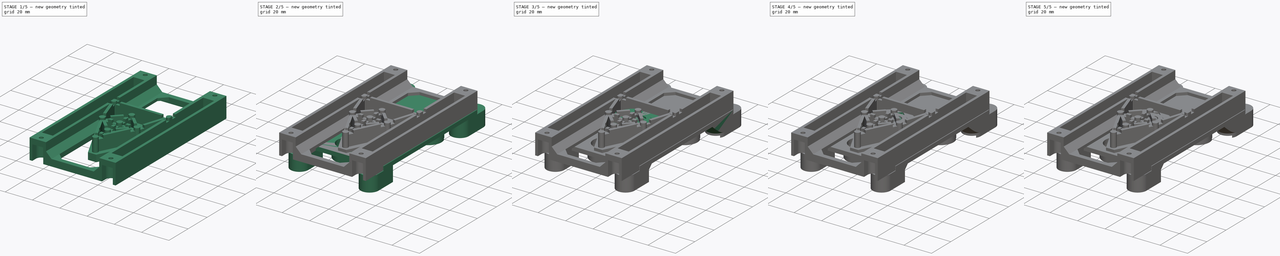
[diagram: build sequence overview — one tinted view per stage of 5, left to right]
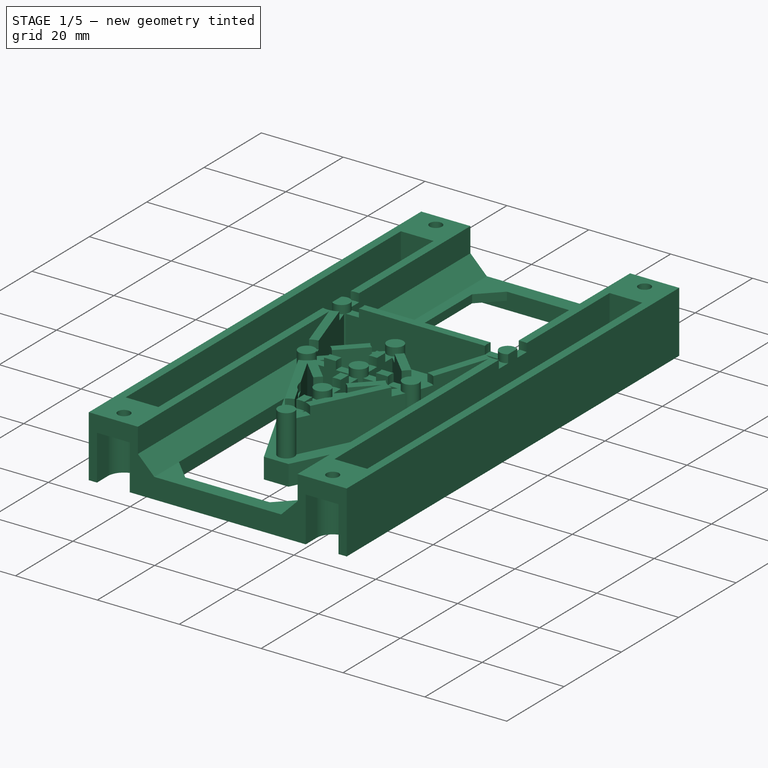
[diagram: stage 1 of 5 — iso view after this stage's code; geometry added in this stage tinted green]
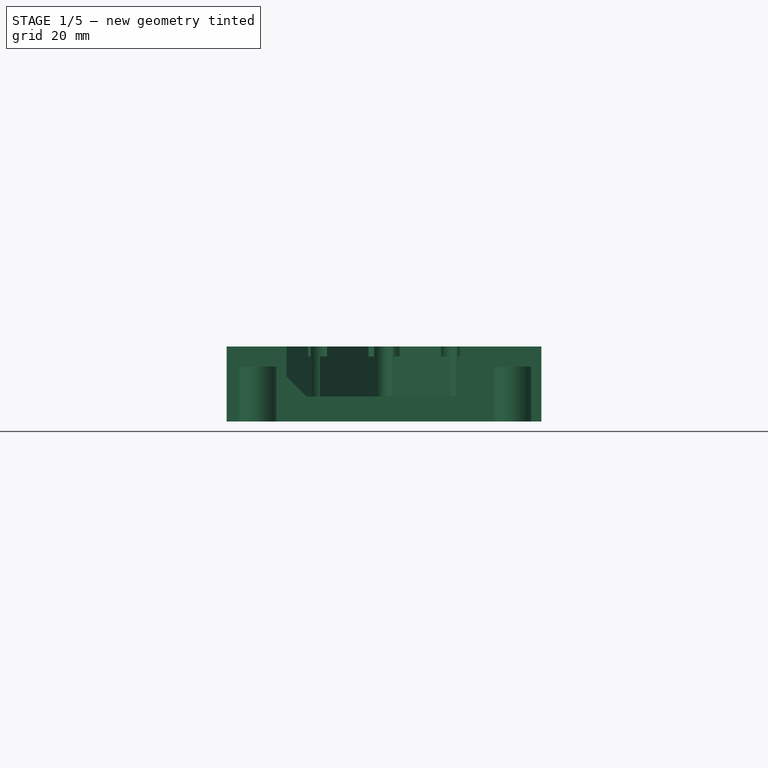
[diagram: stage 1 of 5 — front view after this stage's code; geometry added in this stage tinted green]
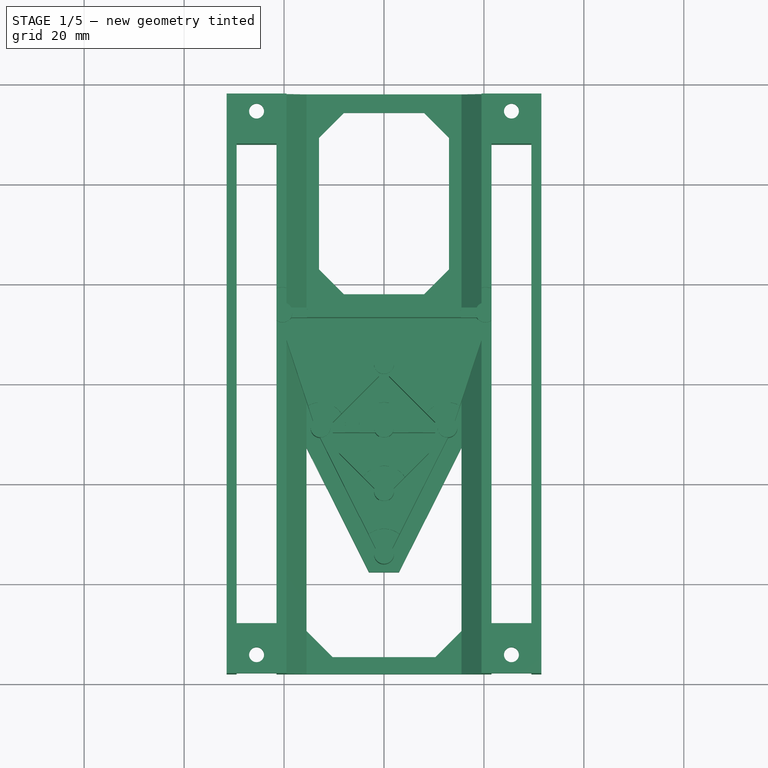
[diagram: stage 1 of 5 — top view after this stage's code; geometry added in this stage tinted green]
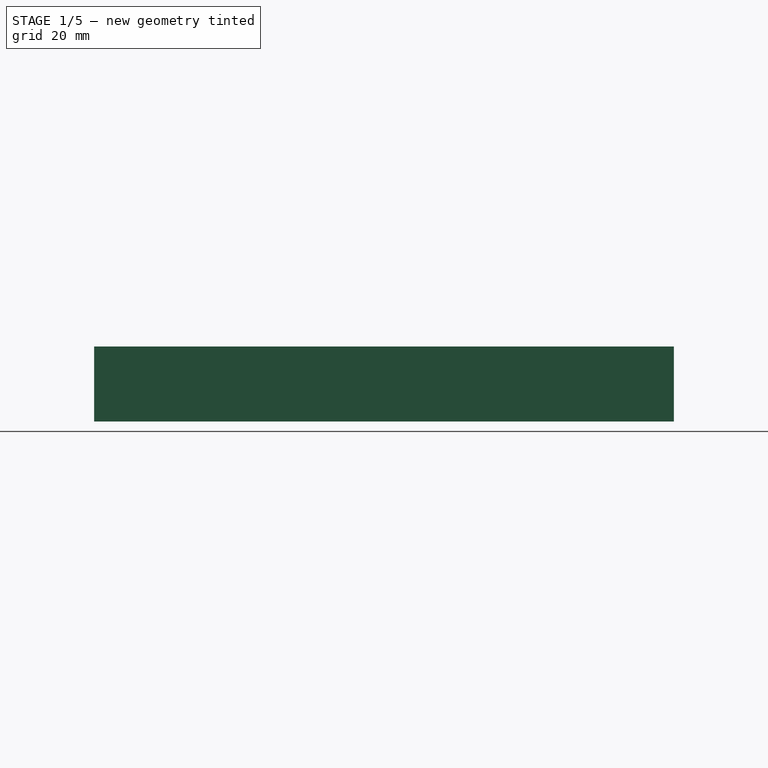
[diagram: stage 1 of 5 — right view after this stage's code; geometry added in this stage tinted green]
FCSTD DOCUMENT  (FreeCAD 1.0R39319 (Git))
Label: NavigationBoard
License: All rights reserved
LicenseURL: https://en.wikipedia.org/wiki/All_rights_reserved
objects: Sketcher::SketchObject×44, PartDesign::Pocket×24, PartDesign::Pad×21, PartDesign::Chamfer×11, PartDesign::PolarPattern×10, Part::Feature×9, PartDesign::Body×7, App::Part×2, App::Link×2, PartDesign::Mirrored×2, PartDesign::Line×2, Part::Part2DObjectPython×2, App::LinkGroup×2, PartDesign::Revolution×1
note: 303 computed .brp shape members not serialized (recipe doc carries the construction recipe); baked Part::Feature solids carry a one-line shape summary decoded from their .brp

FEATURE [PartDesign::Body] Body001  label="NavBoardTop"
  AllowCompound = false
  Group = -> [Sketch001,Pad001,Sketch012,Pad011,Sketch019,Pocket003,PolarPattern,Sketch020,Pad016,Sketch002,Pocket,Sketch022,Pocket005,Sketch029,Pad019,Sketch030,Pocket009,DatumLine,PolarPattern004,DatumLine001,Sketch031,Pocket010,PolarPattern005,Sketch033,Pad021,Sketch034,Pocket013,Sketch,Pocket019,Sketch042,Pocket020,Chamfer008,Chamfer009,Chamfer010,Chamfer011]
  Origin = -> Origin002
  Placement = pos=(0,0,12) rot=(0,0,1;0rad)
  Tip = -> Chamfer011
FEATURE [Sketcher::SketchObject] Sketch046
  ArcFitTolerance = 1e-06
  AttachmentSupport = -> [XY_Plane011]
  FullyConstrained = true
  MakeInternals = false
  MapMode = 5
  sketch-geometry (5):
    g0: LineSegment StartX=-31.5 StartY=-58 StartZ=0 EndX=31.5 EndY=-58 EndZ=0
    g1: LineSegment StartX=31.5 StartY=-58 StartZ=0 EndX=31.5 EndY=58 EndZ=0
    g2: LineSegment StartX=31.5 StartY=58 StartZ=0 EndX=-31.5 EndY=58 EndZ=0
    g3: LineSegment StartX=-31.5 StartY=58 StartZ=0 EndX=-31.5 EndY=-58 EndZ=0
    g4: GeomPoint [constr] X=0 Y=0 Z=0
  constraints (12):
    c: Coincident(g0,g1)
    c: Coincident(g1,g2)
    c: Coincident(g2,g3)
    c: Coincident(g3,g0)
    c: Horizontal(g0)
    c: Horizontal(g2)
    c: Vertical(g1)
    c: Vertical(g3)
    c: Symmetric(g2,g0,g4)
    c: Distance(g1,g3) = 63
    c: Distance(g0,g2) = 116
    c: Coincident(g4,g-1)
FEATURE [PartDesign::Pad] Pad025
  Direction = (0,0,1)
  Length = 5
  Length2 = 10
  Profile = -> Sketch046
  ReferenceAxis = -> Sketch046 [N_Axis]
  Refine = true
  Suppressed = false
  Type = 0
FEATURE [Sketcher::SketchObject] Sketch047
  ArcFitTolerance = 1e-06
  AttachmentSupport = -> [Pad025]
  FullyConstrained = true
  MakeInternals = false
  MapMode = 5
  Placement = pos=(0,0,5) rot=(0,0,1;0rad)
  sketch-geometry (8):
    g0: Circle CenterX=-20.3 CenterY=14.22 CenterZ=0 NormalX=0 NormalY=0 NormalZ=1 AngleXU=0 Radius=2
    g1: Circle CenterX=20.3 CenterY=14.22 CenterZ=0 NormalX=0 NormalY=0 NormalZ=1 AngleXU=0 Radius=2
    g2: Circle CenterX=0 CenterY=3.9 CenterZ=0 NormalX=0 NormalY=0 NormalZ=1 AngleXU=0 Radius=2
    g3: Circle CenterX=-12.7 CenterY=-8.8 CenterZ=0 NormalX=0 NormalY=0 NormalZ=1 AngleXU=0 Radius=2
    g4: Circle CenterX=0 CenterY=-8.8 CenterZ=0 NormalX=0 NormalY=0 NormalZ=1 AngleXU=0 Radius=2
    g5: Circle CenterX=12.7 CenterY=-8.8 CenterZ=0 NormalX=0 NormalY=0 NormalZ=1 AngleXU=0 Radius=2
    g6: Circle CenterX=0 CenterY=-21.5 CenterZ=0 NormalX=0 NormalY=0 NormalZ=1 AngleXU=0 Radius=2
    g7: Circle CenterX=0 CenterY=-34.1 CenterZ=0 NormalX=0 NormalY=0 NormalZ=1 AngleXU=0 Radius=2
  constraints (24):
    c: Diameter(g0) = 4
    c: DistanceX(g0,g-1) = 20.3
    c: Distance(g0,g-1) = 14.22
    c: Diameter(g1) = 4
    c: DistanceX(g-1,g1) = 20.3
    c: Distance(g1,g-1) = 14.22
    c: Diameter(g2) = 4
    c: PointOnObject(g2,g-2)
    c: DistanceY(g-1,g2) = 3.9
    c: Diameter(g3) = 4
    c: Diameter(g4) = 4
    c: PointOnObject(g4,g-2)
    c: Diameter(g5) = 4
    c: Distance(g3,g-2) = 12.7
    c: DistanceY(g3,g-1) = 8.8
    c: Horizontal(g3,g4)
    c: Horizontal(g4,g5)
    c: DistanceX(g-1,g5) = 12.7
    c: Diameter(g6) = 4
    c: PointOnObject(g6,g-2)
    c: Diameter(g7) = 4
    c: PointOnObject(g7,g-2)
    c: DistanceY(g6,g-1) = 21.5
    c: DistanceY(g7,g6) = 12.6
FEATURE [PartDesign::Pad] Pad026
  BaseFeature = -> Pad025
  Direction = (0,0,1)
  Length = 10
  Length2 = 10
  Profile = -> Sketch047
  ReferenceAxis = -> Sketch047 [N_Axis]
  Refine = true
  Suppressed = false
  Type = 0
FEATURE [Sketcher::SketchObject] Sketch048
  ArcFitTolerance = 1e-06
  AttachmentSupport = -> [Pad026]
  ExternalGeometry = -> [Pad026]
  FullyConstrained = false
  MakeInternals = false
  MapMode = 5
  Placement = pos=(0,0,5) rot=(0,0,1;0rad)
  sketch-geometry (15):
    g0: LineSegment StartX=-13.6496 StartY=-9.1135 StartZ=0 EndX=-21.2496 EndY=13.9065 EndZ=0
    g1: ArcOfCircle CenterX=-20.3 CenterY=14.22 CenterZ=0 NormalX=0 NormalY=0 NormalZ=1 AngleXU=0 Radius=1 StartAngle=1.5708 EndAngle=3.46047
    g2: LineSegment StartX=-20.3 StartY=15.22 StartZ=0 EndX=20.3 EndY=15.22 EndZ=0
    g3: ArcOfCircle CenterX=20.3 CenterY=14.22 CenterZ=0 NormalX=0 NormalY=0 NormalZ=1 AngleXU=-1.88968 Radius=1 StartAngle=1.5708 EndAngle=3.46047
    g4: LineSegment StartX=21.2496 StartY=13.9065 StartZ=0 EndX=13.6496 EndY=-9.1135 EndZ=0
    g5: ArcOfCircle CenterX=12.7 CenterY=-8.8 CenterZ=0 NormalX=0 NormalY=0 NormalZ=1 AngleXU=-2.03602 Radius=1 StartAngle=1.5708 EndAngle=1.71714
    g6: LineSegment StartX=13.5937 StartY=-9.24863 StartZ=0 EndX=0.89372 EndY=-34.5486 EndZ=0
    g7: ArcOfCircle CenterX=0 CenterY=-34.1 CenterZ=0 NormalX=0 NormalY=0 NormalZ=1 AngleXU=2.03602 Radius=1 StartAngle=1.5708 EndAngle=3.78193
    g8: LineSegment StartX=-0.89372 StartY=-34.5486 StartZ=0 EndX=-13.5937 EndY=-9.24863 EndZ=0
    g9: ArcOfCircle CenterX=-12.7 CenterY=-8.8 CenterZ=0 NormalX=0 NormalY=0 NormalZ=1 AngleXU=1.88968 Radius=1 StartAngle=1.5708 EndAngle=1.71714
    g10: LineSegment StartX=-11.7734 StartY=-8.41689 StartZ=0 EndX=-18.9168 EndY=13.22 EndZ=0
    g11: LineSegment StartX=-18.9168 StartY=13.22 StartZ=0 EndX=18.9168 EndY=13.22 EndZ=0
    g12: LineSegment StartX=18.9168 StartY=13.22 StartZ=0 EndX=11.7734 EndY=-8.41689 EndZ=0
    g13: LineSegment StartX=11.7734 StartY=-8.41689 StartZ=0 EndX=-1.8e-15 EndY=-31.871 EndZ=0
    g14: LineSegment StartX=-1.8e-15 StartY=-31.871 StartZ=0 EndX=-11.7734 EndY=-8.41689 EndZ=0
  constraints (15):
    c: Tangent(g0,g1) = 1.5708
    c: Tangent(g0,g9) = 1.5708
    c: Tangent(g1,g2) = 1.5708
    c: Tangent(g2,g3) = 1.5708
    c: Tangent(g3,g4) = 1.5708
    c: Tangent(g4,g5) = 1.5708
    c: Tangent(g5,g6) = 1.5708
    c: Tangent(g6,g7) = 1.5708
    c: Tangent(g7,g8) = 1.5708
    c: Tangent(g8,g9) = 1.5708
    c: Coincident(g10,g11)
    c: Coincident(g10,g14)
    c: Coincident(g11,g12)
    c: Coincident(g12,g13)
    c: Coincident(g13,g14)
FEATURE [PartDesign::Pad] Pad027
  BaseFeature = -> Pad026
  Direction = (0,0,1)
  Length = 10
  Length2 = 10
  Profile = -> Sketch048
  ReferenceAxis = -> Sketch048 [N_Axis]
  Refine = true
  Suppressed = false
  Type = 0
FEATURE [Sketcher::SketchObject] Sketch049
  ArcFitTolerance = 1e-06
  AttachmentSupport = -> [Pad027]
  ExternalGeometry = -> [Pad027]
  FullyConstrained = false
  MakeInternals = false
  MapMode = 5
  Placement = pos=(0,0,5) rot=(0,0,1;0rad)
  sketch-geometry (12):
    g0: LineSegment StartX=-13.4071 StartY=-9.50711 StartZ=0 EndX=-0.707107 EndY=-22.2071 EndZ=0
    g1: ArcOfCircle CenterX=0 CenterY=-21.5 CenterZ=0 NormalX=0 NormalY=0 NormalZ=-1 AngleXU=2.35619 Radius=1 StartAngle=1.5708 EndAngle=3.14159
    g2: LineSegment StartX=0.707107 StartY=-22.2071 StartZ=0 EndX=13.4071 EndY=-9.50711 EndZ=0
    g3: ArcOfCircle CenterX=12.7 CenterY=-8.8 CenterZ=0 NormalX=0 NormalY=0 NormalZ=-1 AngleXU=0.785398 Radius=1 StartAngle=1.5708 EndAngle=3.14159
    g4: LineSegment StartX=13.4071 StartY=-8.09289 StartZ=0 EndX=0.707107 EndY=4.60711 EndZ=0
    g5: ArcOfCircle CenterX=0 CenterY=3.9 CenterZ=0 NormalX=0 NormalY=0 NormalZ=-1 AngleXU=-0.785398 Radius=1 StartAngle=1.5708 EndAngle=3.14159
    g6: LineSegment StartX=-0.707107 StartY=4.60711 StartZ=0 EndX=-13.4071 EndY=-8.09289 EndZ=0
    g7: ArcOfCircle CenterX=-12.7 CenterY=-8.8 CenterZ=0 NormalX=0 NormalY=0 NormalZ=-1 AngleXU=-2.35619 Radius=1 StartAngle=1.5708 EndAngle=3.14159
    g8: LineSegment StartX=-11.2858 StartY=-8.8 StartZ=0 EndX=0 EndY=-20.0858 EndZ=0
    g9: LineSegment StartX=0 StartY=-20.0858 StartZ=0 EndX=11.2858 EndY=-8.8 EndZ=0
    g10: LineSegment StartX=11.2858 StartY=-8.8 StartZ=0 EndX=0 EndY=2.48579 EndZ=0
    g11: LineSegment StartX=0 StartY=2.48579 StartZ=0 EndX=-11.2858 EndY=-8.8 EndZ=0
  constraints (12):
    c: Tangent(g0,g1) = -1.5708
    c: Tangent(g0,g7) = -1.5708
    c: Tangent(g1,g2) = -1.5708
    c: Tangent(g2,g3) = -1.5708
    c: Tangent(g3,g4) = -1.5708
    c: Tangent(g4,g5) = -1.5708
    c: Tangent(g5,g6) = -1.5708
    c: Tangent(g6,g7) = -1.5708
    c: Coincident(g8,g9)
    c: Coincident(g8,g11)
    c: Coincident(g9,g10)
    c: Coincident(g10,g11)
FEATURE [PartDesign::Pad] Pad028
  BaseFeature = -> Pad027
  Direction = (0,0,1)
  Length = 10
  Length2 = 10
  Profile = -> Sketch049
  ReferenceAxis = -> Sketch049 [N_Axis]
  Refine = true
  Suppressed = false
  Type = 0
FEATURE [Sketcher::SketchObject] Sketch050
  ArcFitTolerance = 1e-06
  AttachmentSupport = -> [Pad028]
  ExternalGeometry = -> [Pad028]
  FullyConstrained = false
  MakeInternals = false
  MapMode = 5
  Placement = pos=(0,0,5) rot=(0,0,1;0rad)
  sketch-geometry (6):
    g0: ArcOfCircle CenterX=0 CenterY=3.9 CenterZ=0 NormalX=0 NormalY=0 NormalZ=-1 AngleXU=-1.5708 Radius=1 StartAngle=1.5708 EndAngle=4.71239
    g1: LineSegment StartX=1 StartY=3.9 StartZ=0 EndX=1 EndY=-8.76667 EndZ=0
    g2: LineSegment StartX=1 StartY=-8.76667 StartZ=0 EndX=1 EndY=-34.1 EndZ=0
    g3: ArcOfCircle CenterX=0 CenterY=-34.1 CenterZ=0 NormalX=0 NormalY=0 NormalZ=-1 AngleXU=1.5708 Radius=1 StartAngle=1.5708 EndAngle=4.71239
    g4: LineSegment StartX=-1 StartY=-8.76667 StartZ=0 EndX=-1 EndY=-34.1 EndZ=0
    g5: LineSegment StartX=-1 StartY=3.9 StartZ=0 EndX=-1 EndY=-8.76667 EndZ=0
  constraints (6):
    c: Tangent(g0,g1) = 1.5708
    c: Tangent(g0,g5) = -1.5708
    c: Coincident(g1,g2)
    c: Tangent(g2,g3) = 1.5708
    c: Tangent(g3,g4) = -1.5708
    c: Coincident(g4,g5)
FEATURE [PartDesign::Pad] Pad029
  BaseFeature = -> Pad028
  Direction = (0,0,1)
  Length = 10
  Length2 = 10
  Profile = -> Sketch050
  ReferenceAxis = -> Sketch050 [N_Axis]
  Refine = true
  Suppressed = false
  Type = 0
FEATURE [Sketcher::SketchObject] Sketch051
  ArcFitTolerance = 1e-06
  AttachmentSupport = -> [Pad029]
  ExternalGeometry = -> [Pad029]
  FullyConstrained = false
  MakeInternals = false
  MapMode = 5
  Placement = pos=(0,0,5) rot=(0,0,1;0rad)
  sketch-geometry (6):
    g0: ArcOfCircle CenterX=-12.7 CenterY=-8.8 CenterZ=0 NormalX=0 NormalY=0 NormalZ=-1 AngleXU=-3.14159 Radius=1 StartAngle=1.5708 EndAngle=4.71239
    g1: LineSegment StartX=-12.7 StartY=-7.8 StartZ=0 EndX=-4.23333 EndY=-7.8 EndZ=0
    g2: LineSegment StartX=-4.23333 StartY=-7.8 StartZ=0 EndX=12.7 EndY=-7.8 EndZ=0
    g3: ArcOfCircle CenterX=12.7 CenterY=-8.8 CenterZ=0 NormalX=0 NormalY=0 NormalZ=-1 AngleXU=0 Radius=1 StartAngle=1.5708 EndAngle=4.71239
    g4: LineSegment StartX=-4.23333 StartY=-9.8 StartZ=0 EndX=12.7 EndY=-9.8 EndZ=0
    g5: LineSegment StartX=-12.7 StartY=-9.8 StartZ=0 EndX=-4.23333 EndY=-9.8 EndZ=0
  constraints (6):
    c: Tangent(g0,g1) = 1.5708
    c: Tangent(g0,g5) = -1.5708
    c: Coincident(g1,g2)
    c: Tangent(g2,g3) = 1.5708
    c: Tangent(g3,g4) = -1.5708
    c: Coincident(g4,g5)
FEATURE [PartDesign::Pad] Pad030
  BaseFeature = -> Pad029
  Direction = (0,0,1)
  Length = 10
  Length2 = 10
  Profile = -> Sketch051
  ReferenceAxis = -> Sketch051 [N_Axis]
  Refine = true
  Suppressed = false
  Type = 0
FEATURE [Sketcher::SketchObject] Sketch052
  ArcFitTolerance = 1e-06
  AttachmentSupport = -> [Pad030]
  ExternalGeometry = -> [Pad030]
  FullyConstrained = true
  MakeInternals = false
  MapMode = 5
  Placement = pos=(0,0,15) rot=(0,0,1;0rad)
  sketch-geometry (16):
    g0: Circle CenterX=-20.3 CenterY=14.22 CenterZ=0 NormalX=0 NormalY=0 NormalZ=1 AngleXU=0 Radius=5
    g1: Circle CenterX=20.3 CenterY=14.22 CenterZ=0 NormalX=0 NormalY=0 NormalZ=1 AngleXU=0 Radius=5
    g2: Circle CenterX=0 CenterY=3.9 CenterZ=0 NormalX=0 NormalY=0 NormalZ=1 AngleXU=0 Radius=5
    g3: Circle CenterX=-12.7 CenterY=-8.8 CenterZ=0 NormalX=0 NormalY=0 NormalZ=1 AngleXU=0 Radius=5
    g4: Circle CenterX=0 CenterY=-8.8 CenterZ=0 NormalX=0 NormalY=0 NormalZ=1 AngleXU=0 Radius=5
    g5: Circle CenterX=12.7 CenterY=-8.8 CenterZ=0 NormalX=0 NormalY=0 NormalZ=1 AngleXU=0 Radius=5
    g6: Circle CenterX=0 CenterY=-21.5 CenterZ=0 NormalX=0 NormalY=0 NormalZ=1 AngleXU=0 Radius=5
    g7: Circle CenterX=-20.3 CenterY=14.22 CenterZ=0 NormalX=0 NormalY=0 NormalZ=1 AngleXU=0 Radius=2
    g8: Circle CenterX=20.3 CenterY=14.22 CenterZ=0 NormalX=0 NormalY=0 NormalZ=1 AngleXU=0 Radius=2
    g9: Circle CenterX=0 CenterY=3.9 CenterZ=0 NormalX=0 NormalY=0 NormalZ=1 AngleXU=0 Radius=2
    g10: Circle CenterX=-12.7 CenterY=-8.8 CenterZ=0 NormalX=0 NormalY=0 NormalZ=1 AngleXU=0 Radius=2
    g11: Circle CenterX=0 CenterY=-8.8 CenterZ=0 NormalX=0 NormalY=0 NormalZ=1 AngleXU=0 Radius=2
    g12: Circle CenterX=12.7 CenterY=-8.8 CenterZ=0 NormalX=0 NormalY=0 NormalZ=1 AngleXU=0 Radius=2
    g13: Circle CenterX=0 CenterY=-21.5 CenterZ=0 NormalX=0 NormalY=0 NormalZ=1 AngleXU=0 Radius=2
    g14: Circle CenterX=0 CenterY=-34.1 CenterZ=0 NormalX=0 NormalY=0 NormalZ=1 AngleXU=0 Radius=5
    g15: Circle CenterX=0 CenterY=-34.1 CenterZ=0 NormalX=0 NormalY=0 NormalZ=1 AngleXU=0 Radius=2
  constraints (32):
    c: Diameter(g0) = 10
    c: Coincident(g0,g-3)
    c: Diameter(g1) = 10
    c: Coincident(g1,g-4)
    c: Diameter(g2) = 10
    c: Coincident(g2,g-5)
    c: Diameter(g3) = 10
    c: Coincident(g3,g-6)
    c: Diameter(g4) = 10
    c: Coincident(g4,g-8)
    c: Diameter(g5) = 10
    c: Coincident(g5,g-7)
    c: Diameter(g6) = 10
    c: Coincident(g6,g-9)
    c: Diameter(g7) = 4
    c: Coincident(g7,g0)
    c: Diameter(g8) = 4
    c: Coincident(g8,g1)
    c: Diameter(g9) = 4
    c: Coincident(g9,g2)
    c: Diameter(g10) = 4
    c: Coincident(g10,g3)
    c: Diameter(g11) = 4
    c: Coincident(g11,g4)
    c: Diameter(g12) = 4
    c: Coincident(g12,g5)
    c: Diameter(g13) = 4
    c: Coincident(g13,g6)
    c: Diameter(g14) = 10
    c: Coincident(g14,g-10)
    c: Diameter(g15) = 4
    c: Coincident(g15,g14)
FEATURE [Sketcher::SketchObject] Sketch053
  ArcFitTolerance = 1e-06
  AttachmentSupport = -> [Pad030]
  FullyConstrained = true
  MakeInternals = false
  MapMode = 5
  Placement = pos=(31.5,0,0) rot=(0.57735,0.57735,0.57735;2.0944rad)
  sketch-geometry (4):
    g0: LineSegment StartX=-58 StartY=15 StartZ=0 EndX=-58 EndY=5 EndZ=0
    g1: LineSegment StartX=-58 StartY=5 StartZ=0 EndX=58 EndY=5 EndZ=0
    g2: LineSegment StartX=58 StartY=15 StartZ=0 EndX=-58 EndY=15 EndZ=0
    g3: LineSegment StartX=58 StartY=15 StartZ=0 EndX=58 EndY=5 EndZ=0
  constraints (12):
    c: Vertical(g0)
    c: PointOnObject(g1,g-3)
    c: PointOnObject(g1,g-3)
    c: Coincident(g2,g0)
    c: Horizontal(g2)
    c: Distance(g-2,g0) = 58
    c: Vertical(g3)
    c: DistanceY(g1,g2) = 10
    c: Distance(g-2,g3) = 58
    c: Coincident(g2,g3)
    c: Coincident(g0,g1)
    c: Coincident(g3,g1)
FEATURE [PartDesign::Pad] Pad031
  BaseFeature = -> Pad030
  Direction = (1,0,0)
  Length = 12
  Length2 = 10
  Profile = -> Sketch053
  ReferenceAxis = -> Sketch053 [N_Axis]
  Refine = true
  Reversed = true
  Suppressed = false
  Type = 0
FEATURE [Sketcher::SketchObject] Sketch054
  ArcFitTolerance = 1e-06
  AttachmentSupport = -> [Pad031]
  ExternalGeometry = -> [Pad031]
  FullyConstrained = true
  MakeInternals = false
  MapMode = 5
  Placement = pos=(0,0,15) rot=(0,0,1;0rad)
  sketch-geometry (6):
    g0: LineSegment StartX=21.5 StartY=48 StartZ=0 EndX=21.5 EndY=-48 EndZ=0
    g1: LineSegment StartX=21.5 StartY=-48 StartZ=0 EndX=29.5 EndY=-48 EndZ=0
    g2: LineSegment StartX=29.5 StartY=-48 StartZ=0 EndX=29.5 EndY=48 EndZ=0
    g3: LineSegment StartX=29.5 StartY=48 StartZ=0 EndX=21.5 EndY=48 EndZ=0
    g4: Circle CenterX=25.5 CenterY=-54.3 CenterZ=0 NormalX=0 NormalY=0 NormalZ=1 AngleXU=0 Radius=1.5
    g5: Circle CenterX=25.5 CenterY=54.5 CenterZ=0 NormalX=0 NormalY=0 NormalZ=1 AngleXU=0 Radius=1.5
  constraints (18):
    c: Coincident(g0,g1)
    c: Coincident(g1,g2)
    c: Coincident(g2,g3)
    c: Coincident(g3,g0)
    c: Vertical(g0)
    c: Vertical(g2)
    c: Horizontal(g1)
    c: Horizontal(g3)
    c: Distance(g-5,g3) = 10
    c: Distance(g-4,g0) = 2
    c: Distance(g-3,g2) = 2
    c: Distance(g-3,g1) = 10
    c: Diameter(g4) = 3
    c: Distance(g4,g-3) = 6
    c: DistanceY(g4,g1) = 6.3
    c: Diameter(g5) = 3
    c: Distance(g5,g-4) = 6
    c: Distance(g5,g3) = 6.5
FEATURE [PartDesign::Pocket] Pocket023
  BaseFeature = -> Pad031
  Direction = (0,0,-1)
  Length = 5
  Length2 = 5
  Profile = -> Sketch054
  ReferenceAxis = -> Sketch054 [N_Axis]
  Refine = true
  Suppressed = false
  Type = 1
FEATURE [Sketcher::SketchObject] Sketch055
  ArcFitTolerance = 1e-06
  AttachmentSupport = -> [Pocket023]
  ExternalGeometry = -> [Pocket023]
  FullyConstrained = true
  MakeInternals = false
  MapMode = 5
  Placement = pos=(0,0,0) rot=(1,0,0;3.14159rad)
  sketch-geometry (8):
    g0: ArcOfCircle CenterX=25.5 CenterY=54.3 CenterZ=0 NormalX=0 NormalY=0 NormalZ=1 AngleXU=0 Radius=4 StartAngle=3.14159 EndAngle=6.28319
    g1: ArcOfCircle CenterX=25.5 CenterY=62.3 CenterZ=0 NormalX=0 NormalY=0 NormalZ=1 AngleXU=0 Radius=4 StartAngle=0 EndAngle=3.14159
    g2: LineSegment StartX=21.5 StartY=54.3 StartZ=0 EndX=21.5 EndY=62.3 EndZ=0
    g3: LineSegment StartX=29.5 StartY=54.3 StartZ=0 EndX=29.5 EndY=62.3 EndZ=0
    g4: ArcOfCircle CenterX=25.5 CenterY=-54.5 CenterZ=0 NormalX=0 NormalY=0 NormalZ=1 AngleXU=0 Radius=4 StartAngle=-9e-16 EndAngle=3.14159
    g5: ArcOfCircle CenterX=25.5 CenterY=-62.5 CenterZ=0 NormalX=0 NormalY=0 NormalZ=1 AngleXU=0 Radius=4 StartAngle=3.14159 EndAngle=6.28319
    g6: LineSegment StartX=29.5 StartY=-54.5 StartZ=0 EndX=29.5 EndY=-62.5 EndZ=0
    g7: LineSegment StartX=21.5 StartY=-54.5 StartZ=0 EndX=21.5 EndY=-62.5 EndZ=0
  constraints (20):
    c: Tangent(g0,g2) = 1.5708
    c: Tangent(g0,g3) = -1.5708
    c: Tangent(g1,g2) = 1.5708
    c: Tangent(g1,g3) = -1.5708
    c: Equal(g0,g1)
    c: Vertical(g3)
    c: Distance(g0,g1) = 8
    c: Radius(g0) = 4
    c: Distance(g0,g-3) = 4
    c: DistanceY(g-3,g0) = 6.3
    c: Tangent(g4,g6) = 1.5708
    c: Tangent(g4,g7) = -1.5708
    c: Tangent(g5,g6) = 1.5708
    c: Tangent(g5,g7) = -1.5708
    c: Equal(g4,g5)
    c: Vertical(g7)
    c: Distance(g4,g5) = 8
    c: Radius(g4) = 4
    c: Distance(g4,g-4) = 4
    c: DistanceY(g4,g-4) = 6.5
FEATURE [PartDesign::Pocket] Pocket024
  BaseFeature = -> Pocket023
  Direction = (0,0,1)
  Length = 11
  Length2 = 5
  Profile = -> Sketch055
  ReferenceAxis = -> Sketch055 [N_Axis]
  Refine = true
  Suppressed = false
  Type = 0
FEATURE [PartDesign::Pocket] Pocket025
  BaseFeature = -> Pocket024
  Direction = (0,0,-1)
  Length = 2
  Length2 = 5
  Profile = -> Sketch052
  ReferenceAxis = -> Sketch052 [N_Axis]
  Refine = true
  Suppressed = false
  Type = 0
FEATURE [Sketcher::SketchObject] Sketch056
  ArcFitTolerance = 1e-06
  AttachmentSupport = -> [Pocket025]
  ExternalGeometry = -> [Pocket025]
  FullyConstrained = false
  MakeInternals = false
  MapMode = 5
  Placement = pos=(0,0,0) rot=(1,0,0;3.14159rad)
  sketch-geometry (14):
    g0: LineSegment StartX=-17.5 StartY=56 StartZ=0 EndX=-17.5 EndY=10.8104 EndZ=0
    g1: LineSegment StartX=-17.5 StartY=-56 StartZ=0 EndX=17.5 EndY=-56 EndZ=0
    g2: LineSegment StartX=17.5 StartY=-56 StartZ=0 EndX=17.5 EndY=7.59482 EndZ=0
    g3: LineSegment StartX=17.5 StartY=56 StartZ=0 EndX=-17.5 EndY=56 EndZ=0
    g4: LineSegment StartX=-3 StartY=37.6173 StartZ=0 EndX=3 EndY=37.6173 EndZ=0
    g5: LineSegment StartX=3 StartY=37.6173 StartZ=0 EndX=16.4564 EndY=10.8104 EndZ=0
    g6: LineSegment StartX=16.4564 StartY=10.8104 StartZ=0 EndX=17.5 EndY=10.8104 EndZ=0
    g7: LineSegment StartX=-3 StartY=37.6173 StartZ=0 EndX=-16.4564 EndY=10.8104 EndZ=0
    g8: LineSegment StartX=-16.4564 StartY=10.8104 StartZ=0 EndX=-17.5 EndY=10.8104 EndZ=0
    g9: LineSegment StartX=-17.5 StartY=7.59482 StartZ=0 EndX=-3 EndY=-6.90518 EndZ=0
    g10: LineSegment StartX=-3 StartY=-6.90518 StartZ=0 EndX=3 EndY=-6.90518 EndZ=0
    g11: LineSegment StartX=3 StartY=-6.90518 StartZ=0 EndX=17.5 EndY=7.59482 EndZ=0
    g12: LineSegment StartX=-17.5 StartY=7.59482 StartZ=0 EndX=-17.5 EndY=-56 EndZ=0
    g13: LineSegment StartX=17.5 StartY=10.8104 StartZ=0 EndX=17.5 EndY=56 EndZ=0
  constraints (37):
    c: Coincident(g12,g1)
    c: Coincident(g1,g2)
    c: Coincident(g13,g3)
    c: Coincident(g3,g0)
    c: Vertical(g0)
    c: Vertical(g2)
    c: Horizontal(g1)
    c: Horizontal(g3)
    c: Distance(g-3,g3) = 2
    c: Distance(g-4,g0) = 2
    c: Distance(g-3,g2) = 4
    c: Distance(g-5,g1) = 2
    c: Horizontal(g4)
    c: Coincident(g4,g5)
    c: Coincident(g5,g6)
    c: PointOnObject(g6,g13)
    c: Coincident(g4,g7)
    c: Coincident(g7,g8)
    c: PointOnObject(g9,g12)
    c: Coincident(g9,g10)
    c: Horizontal(g10)
    c: Coincident(g10,g11)
    c: Angle(g11,g2) = 0.785398
    c: Angle(g0,g9) = 0.785398
    c: Distance(g9,g-2) = 3
    c: Distance(g10,g-2) = 3
    c: Horizontal(g8)
    c: Horizontal(g6)
    c: Horizontal(g5,g7)
    c: Distance(g4,g-2) = 3
    c: Distance(g4,g-2) = 3
    c: Coincident(g0,g8)
    c: PointOnObject(g12,g9)
    c: Coincident(g2,g11)
    c: PointOnObject(g13,g6)
    c: Parallel(g7,g-7)
    c: Parallel(g5,g-6)
FEATURE [PartDesign::Chamfer] Chamfer012
  Angle = 45
  Base = -> Pocket025 [Edge34,Edge47]
  BaseFeature = -> Pocket025
  ChamferType = 0
  FlipDirection = false
  Refine = true
  Size = 4
  Size2 = 1
  SupportTransform = false
  Suppressed = false
  UseAllEdges = false
FEATURE [PartDesign::Mirrored] Mirrored001
  BaseFeature = -> Chamfer012
  MirrorPlane = -> YZ_Plane011
  Originals = -> [Pad031,Pocket023,Pocket024,Pocket025,Chamfer012]
  Refine = true
  Suppressed = false
  TransformMode = 0
FEATURE [PartDesign::Pocket] Pocket026
  BaseFeature = -> Mirrored001
  Direction = (0,0,1)
  Length = 3
  Length2 = 5
  Profile = -> Sketch056
  ReferenceAxis = -> Sketch056 [N_Axis]
  Refine = true
  Suppressed = false
  Type = 0
FEATURE [Sketcher::SketchObject] Sketch057
  ArcFitTolerance = 1e-06
  AttachmentSupport = -> [Pocket026]
  ExternalGeometry = -> [Pocket026]
  FullyConstrained = false
  MakeInternals = false
  MapMode = 5
  Placement = pos=(0,0,5) rot=(0,0,1;0rad)
  sketch-geometry (16):
    g0: LineSegment StartX=-15.5 StartY=-12.7157 StartZ=0 EndX=-3 EndY=-37.6173 EndZ=0
    g1: LineSegment StartX=-3 StartY=-37.6173 StartZ=0 EndX=3 EndY=-37.6173 EndZ=0
    g2: LineSegment StartX=3 StartY=-37.6173 StartZ=0 EndX=15.5 EndY=-12.7157 EndZ=0
    g3: LineSegment StartX=15.5 StartY=-12.7157 StartZ=0 EndX=15.5 EndY=-49.4189 EndZ=0
    g4: LineSegment StartX=15.5 StartY=-49.4189 StartZ=0 EndX=10.3017 EndY=-54.6173 EndZ=0
    g5: LineSegment StartX=10.3017 StartY=-54.6173 StartZ=0 EndX=-10.3017 EndY=-54.6173 EndZ=0
    g6: LineSegment StartX=-10.3017 StartY=-54.6173 StartZ=0 EndX=-15.5 EndY=-49.4189 EndZ=0
    g7: LineSegment StartX=-15.5 StartY=-49.4189 StartZ=0 EndX=-15.5 EndY=-12.7157 EndZ=0
    g8: LineSegment StartX=-13 StartY=49.3033 StartZ=0 EndX=-8 EndY=54.3033 EndZ=0
    g9: LineSegment StartX=-8 StartY=54.3033 StartZ=0 EndX=8 EndY=54.3033 EndZ=0
    g10: LineSegment StartX=8 StartY=54.3033 StartZ=0 EndX=13 EndY=49.3033 EndZ=0
    g11: LineSegment StartX=13 StartY=49.3033 StartZ=0 EndX=13 EndY=23 EndZ=0
    g12: LineSegment StartX=13 StartY=23 StartZ=0 EndX=8 EndY=18 EndZ=0
    g13: LineSegment StartX=8 StartY=18 StartZ=0 EndX=-8 EndY=18 EndZ=0
    g14: LineSegment StartX=-8 StartY=18 StartZ=0 EndX=-13 EndY=23 EndZ=0
    g15: LineSegment StartX=-13 StartY=23 StartZ=0 EndX=-13 EndY=49.3033 EndZ=0
  constraints (45):
    c: Coincident(g0,g1)
    c: Horizontal(g1)
    c: Coincident(g1,g2)
    c: Vertical(g3)
    c: Coincident(g3,g4)
    c: Coincident(g4,g5)
    c: Horizontal(g5)
    c: Coincident(g5,g6)
    c: Coincident(g6,g7)
    c: Coincident(g7,g0)
    c: Coincident(g8,g9)
    c: Horizontal(g9)
    c: Coincident(g9,g10)
    c: Coincident(g10,g11)
    c: Vertical(g11)
    c: Coincident(g11,g12)
    c: Coincident(g12,g13)
    c: Horizontal(g13)
    c: Coincident(g13,g14)
    c: Coincident(g14,g15)
    c: Coincident(g15,g8)
    c: Vertical(g15)
    c: Angle(g8,g9) = 2.35619
    c: Angle(g9,g10) = 2.35619
    c: Distance(g8,g-2) = 8
    c: Distance(g9,g-2) = 8
    c: Angle(g13,g14) = 2.35619
    c: Angle(g12,g13) = 2.35619
    c: DistanceX(g13,g-1) = 8
    c: Distance(g12,g-2) = 8
    c: Horizontal(g10,g8)
    c: Distance(g-2,g15) = 13
    c: Distance(g-1,g13) = 18
    c: Vertical(g7)
    c: Angle(g6,g7) = 2.35619
    c: Angle(g3,g4) = 2.35619
    c: Distance(g0,g-2) = 3
    c: Horizontal(g6,g3)
    c: Coincident(g3,g2)
    c: Distance(g1,g5) = 17
    c: Vertical(g-7,g0)
    c: Vertical(g-6,g2)
    c: Coincident(g1,g-4)
    c: Parallel(g2,g-3)
    c: Parallel(g0,g-5)
FEATURE [PartDesign::Pocket] Pocket027
  BaseFeature = -> Pocket026
  Direction = (0,0,-1)
  Length = 5
  Length2 = 5
  Profile = -> Sketch057
  ReferenceAxis = -> Sketch057 [N_Axis]
  Refine = true
  Suppressed = false
  Type = 0
FEATURE [PartDesign::Body] Body  label="BoardHolder"
  AllowCompound = false
  Group = -> [Sketch046,Pad025,Sketch047,Pad026,Sketch048,Pad027,Sketch049,Pad028,Sketch050,Pad029,Sketch051,Pad030,Sketch052,Sketch053,Pad031,Sketch054,Pocket023,Sketch055,Pocket024,Pocket025,Sketch056,Chamfer012,Mirrored001,Pocket026,Sketch057,Pocket027]
  Origin = -> Origin011
  Placement = pos=(0,8.8,-14.1) rot=(0,0,1;0rad)
  Tip = -> Pocket027
FEATURE [App::LinkGroup] LinkGroup  label="NavigationBoard"
  ElementList = -> [Body001,EasyEDA_PCB_Model_YX9s,LinkGroup001,Body]
  LinkMode = 0
note: 2 file-system paths scrubbed to <path> (originals preserved in the JSON sidecar)
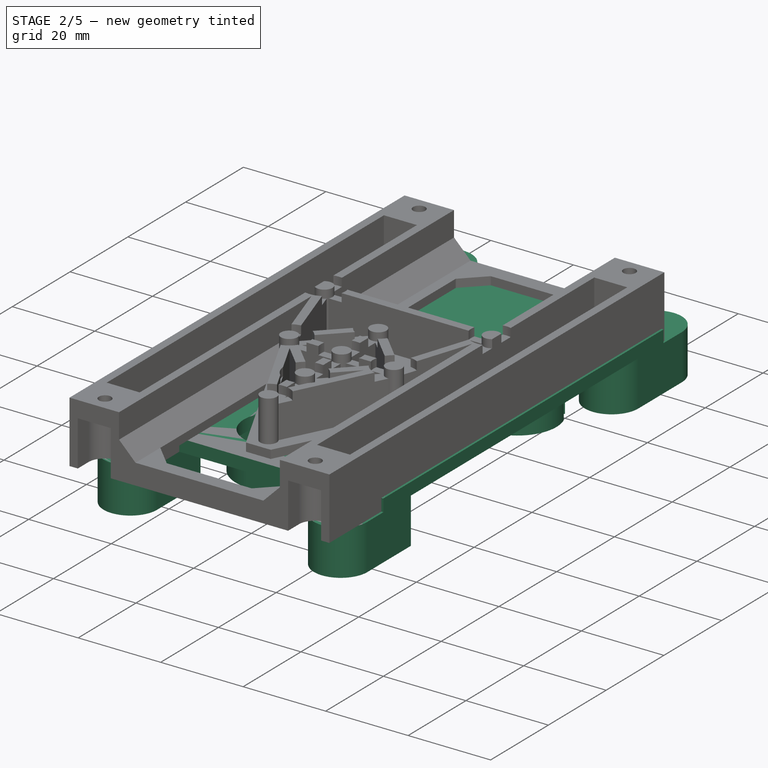
[diagram: stage 2 of 5 — iso view after this stage's code; geometry added in this stage tinted green]
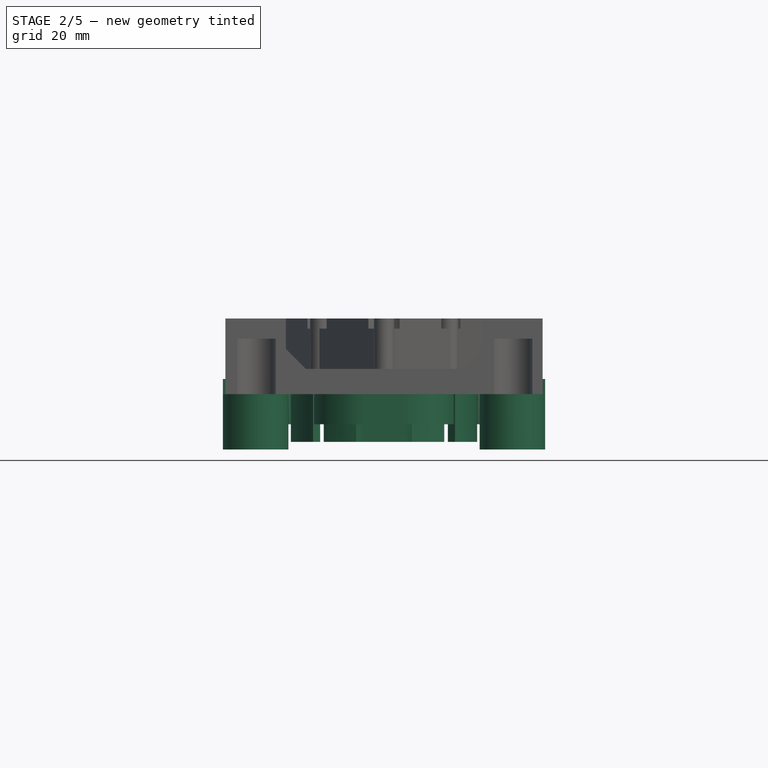
[diagram: stage 2 of 5 — front view after this stage's code; geometry added in this stage tinted green]
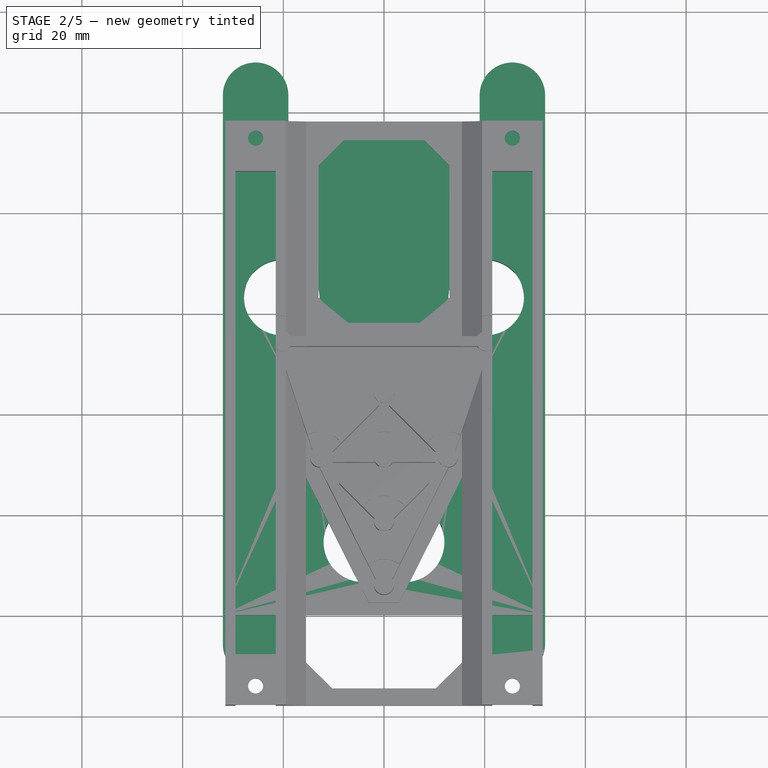
[diagram: stage 2 of 5 — top view after this stage's code; geometry added in this stage tinted green]
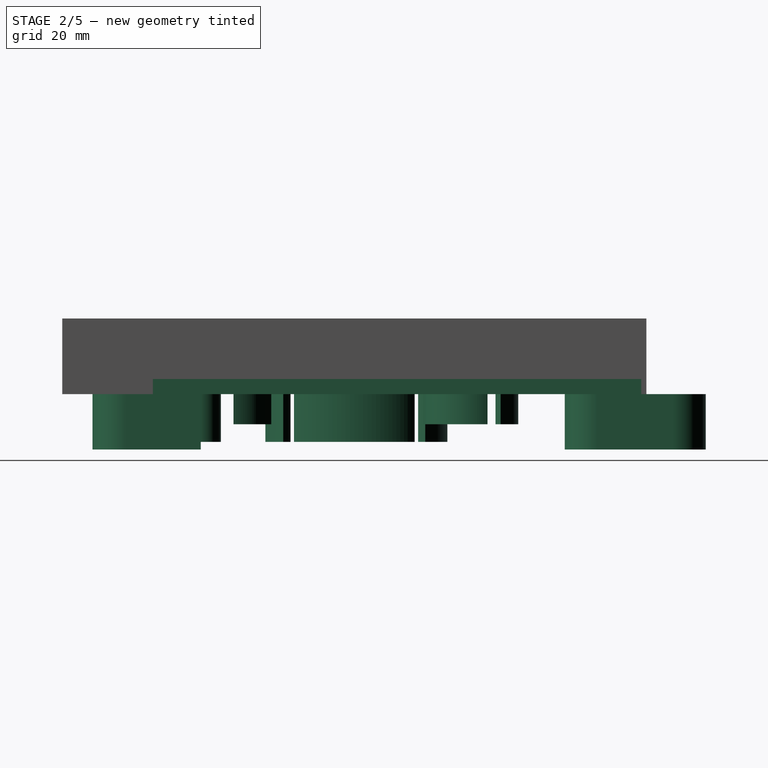
[diagram: stage 2 of 5 — right view after this stage's code; geometry added in this stage tinted green]
FEATURE [Sketcher::SketchObject] Sketch001
  ArcFitTolerance = 1e-06
  AttachmentSupport = -> [XY_Plane002]
  FullyConstrained = true
  MakeInternals = false
  MapMode = 5
  sketch-geometry (5):
    g0: LineSegment StartX=-32 StartY=-40 StartZ=0 EndX=32 EndY=-40 EndZ=0
    g1: LineSegment StartX=32 StartY=-40 StartZ=0 EndX=32 EndY=57 EndZ=0
    g2: LineSegment StartX=32 StartY=57 StartZ=0 EndX=-32 EndY=57 EndZ=0
    g3: LineSegment StartX=-32 StartY=57 StartZ=0 EndX=-32 EndY=-40 EndZ=0
    g4: GeomPoint [constr] X=0 Y=0 Z=0
  constraints (13):
    c: Coincident(g0,g1)
    c: Coincident(g1,g2)
    c: Coincident(g2,g3)
    c: Coincident(g3,g0)
    c: Horizontal(g0)
    c: Horizontal(g2)
    c: Vertical(g1)
    c: Vertical(g3)
    c: Coincident(g4,g-1)
    c: Distance(g-1,g2) = 57
    c: Distance(g1,g-2) = 32
    c: Distance(g-1,g0) = 40
    c: Distance(g-2,g3) = 32
FEATURE [PartDesign::Pad] Pad001
  Direction = (0,0,1)
  Length = 3
  Length2 = 10
  Profile = -> Sketch001
  ReferenceAxis = -> Sketch001 [N_Axis]
  Refine = true
  Suppressed = false
  Type = 0
FEATURE [Sketcher::SketchObject] Sketch012
  ArcFitTolerance = 1e-06
  AttachmentSupport = -> [Pad001]
  FullyConstrained = true
  MakeInternals = false
  MapMode = 5
  Placement = pos=(0,0,0) rot=(1,0,0;3.14159rad)
  sketch-geometry (6):
    g0: Circle CenterX=-25.4 CenterY=30.5 CenterZ=0 NormalX=0 NormalY=0 NormalZ=1 AngleXU=0 Radius=4
    g1: Circle CenterX=25.4 CenterY=30.5 CenterZ=0 NormalX=0 NormalY=0 NormalZ=1 AngleXU=0 Radius=4
    g2: Circle CenterX=-25.4 CenterY=-48.3 CenterZ=0 NormalX=0 NormalY=0 NormalZ=1 AngleXU=0 Radius=4
    g3: Circle CenterX=25.4 CenterY=-48.3 CenterZ=0 NormalX=0 NormalY=0 NormalZ=1 AngleXU=0 Radius=4
    g4: Circle CenterX=0 CenterY=0 CenterZ=0 NormalX=0 NormalY=0 NormalZ=1 AngleXU=0 Radius=16.5
    g5: Circle CenterX=0 CenterY=0 CenterZ=0 NormalX=0 NormalY=0 NormalZ=1 AngleXU=0 Radius=18.5
  constraints (16):
    c: Diameter(g0) = 8
    c: Diameter(g1) = 8
    c: Diameter(g2) = 8
    c: Diameter(g3) = 8
    c: DistanceX(g0,g-1) = 25.4
    c: DistanceY(g-1,g0) = 30.5
    c: Horizontal(g1,g0)
    c: DistanceX(g-1,g1) = 25.4
    c: Vertical(g2,g0)
    c: Vertical(g1,g3)
    c: Horizontal(g2,g3)
    c: DistanceY(g2,g-1) = 48.3
    c: Diameter(g4) = 33
    c: Coincident(g4,g-1)
    c: Diameter(g5) = 37
    c: Coincident(g5,g4)
FEATURE [PartDesign::Pad] Pad011
  BaseFeature = -> Pad001
  Direction = (0,0,-1)
  Length = 9.5
  Length2 = 10
  Profile = -> Sketch012
  ReferenceAxis = -> Sketch012 [N_Axis]
  Refine = true
  Suppressed = false
  Type = 0
FEATURE [Sketcher::SketchObject] Sketch019
  ArcFitTolerance = 1e-06
  AttachmentSupport = -> [Pad011]
  FullyConstrained = true
  MakeInternals = false
  MapMode = 5
  Placement = pos=(0,0,0) rot=(1,0,0;3.14159rad)
  sketch-geometry (4):
    g0: ArcOfCircle CenterX=-1e-16 CenterY=1e-16 CenterZ=0 NormalX=0 NormalY=0 NormalZ=1 AngleXU=0 Radius=1.5 StartAngle=0.785398 EndAngle=3.92699
    g1: ArcOfCircle CenterX=16.9706 CenterY=-16.9706 CenterZ=0 NormalX=0 NormalY=0 NormalZ=1 AngleXU=0 Radius=1.5 StartAngle=3.92699 EndAngle=7.06858
    g2: LineSegment StartX=1.06066 StartY=1.06066 StartZ=0 EndX=18.0312 EndY=-15.9099 EndZ=0
    g3: LineSegment StartX=-1.06066 StartY=-1.06066 StartZ=0 EndX=15.9099 EndY=-18.0312 EndZ=0
  constraints (9):
    c: Tangent(g0,g2) = 1.5708
    c: Tangent(g0,g3) = -1.5708
    c: Tangent(g1,g2) = 1.5708
    c: Tangent(g1,g3) = -1.5708
    c: Equal(g0,g1)
    c: Distance(g0,g1) = 24
    c: Angle(g-1,g2) = -0.785398
    c: Radius(g0) = 1.5
    c: Coincident(g0,g-1)
FEATURE [PartDesign::Pocket] Pocket003
  BaseFeature = -> Pad011
  Direction = (0,0,1)
  Length = 11
  Length2 = 5
  Profile = -> Sketch019
  ReferenceAxis = -> Sketch019 [N_Axis]
  Refine = true
  Reversed = true
  Suppressed = false
  Type = 1
FEATURE [PartDesign::PolarPattern] PolarPattern
  Angle = 360
  Axis = -> Sketch019 [N_Axis]
  BaseFeature = -> Pocket003
  Mode = 0
  Occurrences = 4
  Offset = 120
  Originals = -> [Pocket003]
  Refine = true
  Suppressed = false
  TransformMode = 0
FEATURE [Sketcher::SketchObject] Sketch020
  ArcFitTolerance = 1e-06
  AttachmentSupport = -> [PolarPattern]
  FullyConstrained = true
  MakeInternals = false
  MapMode = 5
  Placement = pos=(0,0,0) rot=(1,0,0;3.14159rad)
  sketch-geometry (8):
    g0: ArcOfCircle CenterX=-4 CenterY=25.5 CenterZ=0 NormalX=0 NormalY=0 NormalZ=1 AngleXU=0 Radius=8 StartAngle=1.5708 EndAngle=4.71239
    g1: ArcOfCircle CenterX=4 CenterY=25.5 CenterZ=0 NormalX=0 NormalY=0 NormalZ=1 AngleXU=0 Radius=8 StartAngle=4.71239 EndAngle=7.85398
    g2: LineSegment StartX=-4 StartY=33.5 StartZ=0 EndX=4 EndY=33.5 EndZ=0
    g3: LineSegment StartX=-4 StartY=17.5 StartZ=0 EndX=4 EndY=17.5 EndZ=0
    g4: ArcOfCircle CenterX=-4 CenterY=25.5 CenterZ=0 NormalX=0 NormalY=0 NormalZ=1 AngleXU=0 Radius=10 StartAngle=1.5708 EndAngle=4.71239
    g5: ArcOfCircle CenterX=4 CenterY=25.5 CenterZ=0 NormalX=0 NormalY=0 NormalZ=1 AngleXU=0 Radius=10 StartAngle=4.71239 EndAngle=7.85398
    g6: LineSegment StartX=-4 StartY=35.5 StartZ=0 EndX=4 EndY=35.5 EndZ=0
    g7: LineSegment StartX=-4 StartY=15.5 StartZ=0 EndX=4 EndY=15.5 EndZ=0
  constraints (18):
    c: Tangent(g0,g2) = 1.5708
    c: Tangent(g0,g3) = -1.5708
    c: Tangent(g1,g2) = 1.5708
    c: Tangent(g1,g3) = -1.5708
    c: Equal(g0,g1)
    c: Horizontal(g3)
    c: Distance(g0,g1) = 8
    c: Radius(g0) = 8
    c: Distance(g0,g-2) = 4
    c: DistanceY(g-1,g0) = 25.5
    c: Tangent(g4,g6) = 1.5708
    c: Tangent(g4,g7) = -1.5708
    c: Tangent(g5,g6) = 1.5708
    c: Tangent(g5,g7) = -1.5708
    c: Equal(g4,g5)
    c: Coincident(g4,g0)
    c: Coincident(g5,g1)
    c: Radius(g4) = 10
FEATURE [PartDesign::Pad] Pad016
  BaseFeature = -> PolarPattern
  Direction = (0,0,-1)
  Length = 6
  Length2 = 10
  Profile = -> Sketch020
  ReferenceAxis = -> Sketch020 [N_Axis]
  Refine = true
  Suppressed = false
  Type = 0
FEATURE [PartDesign::Pocket] Pocket
  BaseFeature = -> Pad016
  Direction = (0,0,-1)
  Length = 5
  Length2 = 5
  Profile = -> Sketch002
  ReferenceAxis = -> Sketch002 [N_Axis]
  Refine = true
  Suppressed = false
  Type = 1
FEATURE [App::Link] Link004  label="TactileSwitch001"
  LinkPlacement = pos=(-0.0999978,-25.4,6.5) rot=(0,0,1;1.5708rad)
  LinkedObject = -> Part__Feature004
  Placement = pos=(-0.0999978,-25.4,6.5) rot=(0,0,1;1.5708rad)
FEATURE [Sketcher::SketchObject] Sketch022
  ArcFitTolerance = 1e-06
  AttachmentSupport = -> [Pocket]
  ExternalGeometry = -> [Pocket]
  FullyConstrained = true
  MakeInternals = false
  MapMode = 5
  Placement = pos=(0,0,0) rot=(1,0,0;3.14159rad)
  sketch-geometry (4):
    g0: LineSegment StartX=-16 StartY=27 StartZ=0 EndX=-16 EndY=24 EndZ=0
    g1: LineSegment StartX=-16 StartY=24 StartZ=0 EndX=16 EndY=24 EndZ=0
    g2: LineSegment StartX=16 StartY=24 StartZ=0 EndX=16 EndY=27 EndZ=0
    g3: LineSegment StartX=16 StartY=27 StartZ=0 EndX=-16 EndY=27 EndZ=0
  constraints (12):
    c: Coincident(g0,g1)
    c: Coincident(g1,g2)
    c: Coincident(g2,g3)
    c: Coincident(g3,g0)
    c: Vertical(g0)
    c: Vertical(g2)
    c: Horizontal(g1)
    c: Horizontal(g3)
    c: Distance(g-2,g2) = 16
    c: Distance(g-2,g0) = 16
    c: Distance(g-3,g3) = 1.5
    c: Distance(g-3,g1) = 1.5
FEATURE [PartDesign::Pocket] Pocket005
  BaseFeature = -> Pocket
  Direction = (0,0,1)
  Length = 11
  Length2 = 5
  Profile = -> Sketch022
  ReferenceAxis = -> Sketch022 [N_Axis]
  Refine = true
  Reversed = true
  Suppressed = false
  Type = 1
FEATURE [Sketcher::SketchObject] Sketch029
  ArcFitTolerance = 1e-06
  AttachmentSupport = -> [Pocket005]
  FullyConstrained = true
  MakeInternals = false
  MapMode = 5
  Placement = pos=(0,0,0) rot=(1,0,0;3.14159rad)
  sketch-geometry (4):
    g0: Circle CenterX=-20.3 CenterY=-23.07 CenterZ=0 NormalX=0 NormalY=0 NormalZ=1 AngleXU=0 Radius=7.5
    g1: Circle CenterX=-20.3 CenterY=-23.07 CenterZ=0 NormalX=0 NormalY=0 NormalZ=1 AngleXU=0 Radius=9.5
    g2: Circle CenterX=20.3 CenterY=-23.07 CenterZ=0 NormalX=0 NormalY=0 NormalZ=1 AngleXU=0 Radius=7.5
    g3: Circle CenterX=20.3 CenterY=-23.07 CenterZ=0 NormalX=0 NormalY=0 NormalZ=1 AngleXU=0 Radius=9.5
  constraints (8):
    c: Coincident(g0,g-3)
    c: Equal(g0,g-3)
    c: Coincident(g1,g0)
    c: Distance(g1,g0) = 2
    c: Coincident(g2,g-4)
    c: Equal(g2,g-4)
    c: Coincident(g3,g2)
    c: Distance(g3,g2) = 2
FEATURE [PartDesign::Pad] Pad019
  BaseFeature = -> Pocket005
  Direction = (0,0,-1)
  Length = 6
  Length2 = 10
  Profile = -> Sketch029
  ReferenceAxis = -> Sketch029 [N_Axis]
  Refine = true
  Suppressed = false
  Type = 0
FEATURE [Sketcher::SketchObject] Sketch030
  ArcFitTolerance = 1e-06
  AttachmentSupport = -> [Pad019]
  ExternalGeometry = -> [Pad019]
  FullyConstrained = false
  MakeInternals = false
  MapMode = 5
  Placement = pos=(0,0,-6) rot=(1,0,0;3.14159rad)
  sketch-geometry (4):
    g0: ArcOfCircle CenterX=-20.3 CenterY=-23.07 CenterZ=0 NormalX=0 NormalY=0 NormalZ=1 AngleXU=0 Radius=1.5 StartAngle=3.14159 EndAngle=6.28319
    g1: ArcOfCircle CenterX=-20.3 CenterY=-11.4402 CenterZ=0 NormalX=0 NormalY=0 NormalZ=1 AngleXU=0 Radius=1.5 StartAngle=0 EndAngle=3.14159
    g2: LineSegment StartX=-21.8 StartY=-23.07 StartZ=0 EndX=-21.8 EndY=-11.4402 EndZ=0
    g3: LineSegment StartX=-18.8 StartY=-23.07 StartZ=0 EndX=-18.8 EndY=-11.4402 EndZ=0
  constraints (8):
    c: Tangent(g0,g2) = 1.5708
    c: Tangent(g0,g3) = -1.5708
    c: Tangent(g1,g2) = 1.5708
    c: Tangent(g1,g3) = -1.5708
    c: Equal(g0,g1)
    c: Vertical(g3)
    c: Radius(g0) = 1.5
    c: Coincident(g0,g-3)
FEATURE [PartDesign::Pocket] Pocket009
  BaseFeature = -> Pad019
  Direction = (0,0,1)
  Length = 6
  Length2 = 5
  Profile = -> Sketch030
  ReferenceAxis = -> Sketch030 [N_Axis]
  Refine = true
  Suppressed = false
  Type = 0
FEATURE [PartDesign::Line] DatumLine
  AttacherType = Attacher::AttachEngineLine
  AttachmentSupport = -> [Pocket009]
  Length = 20
  MapMode = 19
  Placement = pos=(-20.3,23.07,3) rot=(0,0,1;0rad)
  ResizeMode = 0
FEATURE [PartDesign::PolarPattern] PolarPattern004
  Angle = 360
  Axis = -> DatumLine
  BaseFeature = -> Pocket009
  Mode = 0
  Occurrences = 3
  Offset = 120
  Originals = -> [Pocket009]
  Refine = true
  Suppressed = false
  TransformMode = 0
FEATURE [PartDesign::Line] DatumLine001
  AttacherType = Attacher::AttachEngineLine
  AttachmentSupport = -> [PolarPattern004]
  Length = 20
  MapMode = 19
  Placement = pos=(20.3,23.07,3) rot=(0,0,1;0rad)
  ResizeMode = 0
FEATURE [Sketcher::SketchObject] Sketch031
  ArcFitTolerance = 1e-06
  AttachmentSupport = -> [PolarPattern004]
  ExternalGeometry = -> [PolarPattern004]
  FullyConstrained = false
  MakeInternals = false
  MapMode = 5
  Placement = pos=(0,0,-6) rot=(1,0,0;3.14159rad)
  sketch-geometry (4):
    g0: ArcOfCircle CenterX=20.3 CenterY=-23.07 CenterZ=0 NormalX=0 NormalY=0 NormalZ=1 AngleXU=0 Radius=1.5 StartAngle=3.14159 EndAngle=6.28319
    g1: ArcOfCircle CenterX=20.3 CenterY=-12.6014 CenterZ=0 NormalX=0 NormalY=0 NormalZ=1 AngleXU=0 Radius=1.5 StartAngle=0 EndAngle=3.14159
    g2: LineSegment StartX=18.8 StartY=-23.07 StartZ=0 EndX=18.8 EndY=-12.6014 EndZ=0
    g3: LineSegment StartX=21.8 StartY=-23.07 StartZ=0 EndX=21.8 EndY=-12.6014 EndZ=0
  constraints (8):
    c: Tangent(g0,g2) = 1.5708
    c: Tangent(g0,g3) = -1.5708
    c: Tangent(g1,g2) = 1.5708
    c: Tangent(g1,g3) = -1.5708
    c: Equal(g0,g1)
    c: Vertical(g3)
    c: Coincident(g0,g-3)
    c: Radius(g1) = 1.5
FEATURE [PartDesign::Pocket] Pocket010
  BaseFeature = -> PolarPattern004
  Direction = (0,0,1)
  Length = 6
  Length2 = 5
  Profile = -> Sketch031
  ReferenceAxis = -> Sketch031 [N_Axis]
  Refine = true
  Suppressed = false
  Type = 0
FEATURE [PartDesign::PolarPattern] PolarPattern005
  Angle = 360
  Axis = -> DatumLine001
  BaseFeature = -> Pocket010
  Mode = 0
  Occurrences = 3
  Offset = 120
  Originals = -> [Pocket010]
  Refine = true
  Suppressed = false
  TransformMode = 0
FEATURE [Sketcher::SketchObject] Sketch033
  ArcFitTolerance = 1e-06
  AttachmentSupport = -> [PolarPattern005]
  ExternalGeometry = -> [PolarPattern005]
  FullyConstrained = false
  MakeInternals = false
  MapMode = 5
  Placement = pos=(0,0,3) rot=(0,0,1;0rad)
  sketch-geometry (16):
    g0: ArcOfCircle CenterX=-25.5 CenterY=48.3 CenterZ=0 NormalX=0 NormalY=0 NormalZ=1 AngleXU=0 Radius=6.5 StartAngle=3.14159 EndAngle=6.28319
    g1: ArcOfCircle CenterX=-25.5 CenterY=63.3 CenterZ=0 NormalX=0 NormalY=0 NormalZ=1 AngleXU=0 Radius=6.5 StartAngle=0 EndAngle=3.14159
    g2: LineSegment StartX=-32 StartY=48.3 StartZ=0 EndX=-32 EndY=63.3 EndZ=0
    g3: LineSegment StartX=-19 StartY=48.3 StartZ=0 EndX=-19 EndY=63.3 EndZ=0
    g4: ArcOfCircle CenterX=25.5 CenterY=48.3 CenterZ=0 NormalX=0 NormalY=0 NormalZ=1 AngleXU=0 Radius=6.5 StartAngle=3.14159 EndAngle=6.28319
    g5: ArcOfCircle CenterX=25.5 CenterY=63.3 CenterZ=0 NormalX=0 NormalY=0 NormalZ=1 AngleXU=0 Radius=6.5 StartAngle=2e-16 EndAngle=3.14159
    g6: LineSegment StartX=19 StartY=48.3 StartZ=0 EndX=19 EndY=63.3 EndZ=0
    g7: LineSegment StartX=32 StartY=48.3 StartZ=0 EndX=32 EndY=63.3 EndZ=0
    g8: ArcOfCircle CenterX=-25.5 CenterY=-45.5 CenterZ=0 NormalX=0 NormalY=0 NormalZ=1 AngleXU=0 Radius=6.5 StartAngle=3.14159 EndAngle=6.28319
    g9: LineSegment StartX=-19 StartY=-30.5 StartZ=0 EndX=-19 EndY=-45.5 EndZ=0
    g10: LineSegment StartX=-32 StartY=-30.5 StartZ=0 EndX=-32 EndY=-45.5 EndZ=0
    g11: ArcOfCircle CenterX=25.5 CenterY=-45.5 CenterZ=0 NormalX=0 NormalY=0 NormalZ=1 AngleXU=0 Radius=6.5 StartAngle=3.14159 EndAngle=6.28319
    g12: LineSegment StartX=32 StartY=-30.5 StartZ=0 EndX=32 EndY=-45.5 EndZ=0
    g13: LineSegment StartX=19 StartY=-30.5 StartZ=0 EndX=19 EndY=-45.5 EndZ=0
    g14: LineSegment StartX=-32 StartY=-30.5 StartZ=0 EndX=-19 EndY=-30.5 EndZ=0
    g15: LineSegment StartX=19 StartY=-30.5 StartZ=0 EndX=32 EndY=-30.5 EndZ=0
  constraints (34):
    c: Tangent(g0,g2) = 1.5708
    c: Tangent(g0,g3) = -1.5708
    c: Tangent(g1,g2) = 1.5708
    c: Tangent(g1,g3) = -1.5708
    c: Equal(g0,g1)
    c: Vertical(g3)
    c: Distance(g0,g1) = 15
    c: Vertical(g0,g-3)
    c: Radius(g0) = 6.5
    c: Tangent(g4,g6) = 1.5708
    c: Tangent(g4,g7) = -1.5708
    c: Tangent(g5,g6) = 1.5708
    c: Tangent(g5,g7) = -1.5708
    c: Equal(g4,g5)
    c: Vertical(g7)
    c: Distance(g4,g5) = 15
    c: Radius(g4) = 6.5
    c: Vertical(g4,g-4)
    c: Horizontal(g0,g4)
    c: DistanceY(g-1,g0) = 48.3
    c: Tangent(g8,g9) = 1.5708
    c: Tangent(g8,g10) = -1.5708
    c: Vertical(g10)
    c: Vertical(g10,g-3)
    c: Tangent(g11,g12) = 1.5708
    c: Tangent(g11,g13) = -1.5708
    c: Vertical(g13)
    c: Vertical(g12,g-4)
    c: Coincident(g10,g14)
    c: Coincident(g14,g9)
    c: Horizontal(g14)
    c: Coincident(g15,g13)
    c: Coincident(g15,g12)
    c: Horizontal(g15)
FEATURE [PartDesign::Pad] Pad021
  BaseFeature = -> PolarPattern005
  Direction = (0,0,1)
  Length = 14
  Length2 = 10
  Profile = -> Sketch033
  ReferenceAxis = -> Sketch033 [N_Axis]
  Refine = true
  Reversed = true
  Suppressed = false
  Type = 0
FEATURE [Sketcher::SketchObject] Sketch034
  ArcFitTolerance = 1e-06
  AttachmentSupport = -> [Pad021]
  ExternalGeometry = -> [Pad021]
  FullyConstrained = false
  MakeInternals = false
  MapMode = 5
  Placement = pos=(0,0,3) rot=(0,0,1;0rad)
  sketch-geometry (8):
    g0: LineSegment StartX=-58.6623 StartY=87.6289 StartZ=0 EndX=-58.6623 EndY=-72.0446 EndZ=0
    g1: LineSegment StartX=-58.6623 StartY=-72.0446 StartZ=0 EndX=67.0121 EndY=-72.0446 EndZ=0
    g2: LineSegment StartX=67.0121 StartY=-72.0446 StartZ=0 EndX=67.0121 EndY=87.6289 EndZ=0
    g3: LineSegment StartX=67.0121 StartY=87.6289 StartZ=0 EndX=-58.6623 EndY=87.6289 EndZ=0
    g4: LineSegment StartX=-32 StartY=57 StartZ=0 EndX=-32 EndY=-40 EndZ=0
    g5: LineSegment StartX=-32 StartY=-40 StartZ=0 EndX=32 EndY=-40 EndZ=0
    g6: LineSegment StartX=32 StartY=-40 StartZ=0 EndX=32 EndY=57 EndZ=0
    g7: LineSegment StartX=32 StartY=57 StartZ=0 EndX=-32 EndY=57 EndZ=0
  constraints (19):
    c: Coincident(g0,g1)
    c: Coincident(g1,g2)
    c: Coincident(g2,g3)
    c: Coincident(g3,g0)
    c: Vertical(g0)
    c: Vertical(g2)
    c: Horizontal(g1)
    c: Horizontal(g3)
    c: Coincident(g4,g5)
    c: Coincident(g5,g6)
    c: Coincident(g6,g7)
    c: Coincident(g7,g4)
    c: Vertical(g4)
    c: Vertical(g6)
    c: Horizontal(g5)
    c: Horizontal(g7)
    c: Horizontal(g4,g-3)
    c: Vertical(g4,g-5)
    c: Coincident(g5,g-6)
FEATURE [PartDesign::Pocket] Pocket013
  BaseFeature = -> Pad021
  Direction = (0,0,-1)
  Length = 3
  Length2 = 5
  Profile = -> Sketch034
  ReferenceAxis = -> Sketch034 [N_Axis]
  Refine = true
  Suppressed = false
  Type = 0
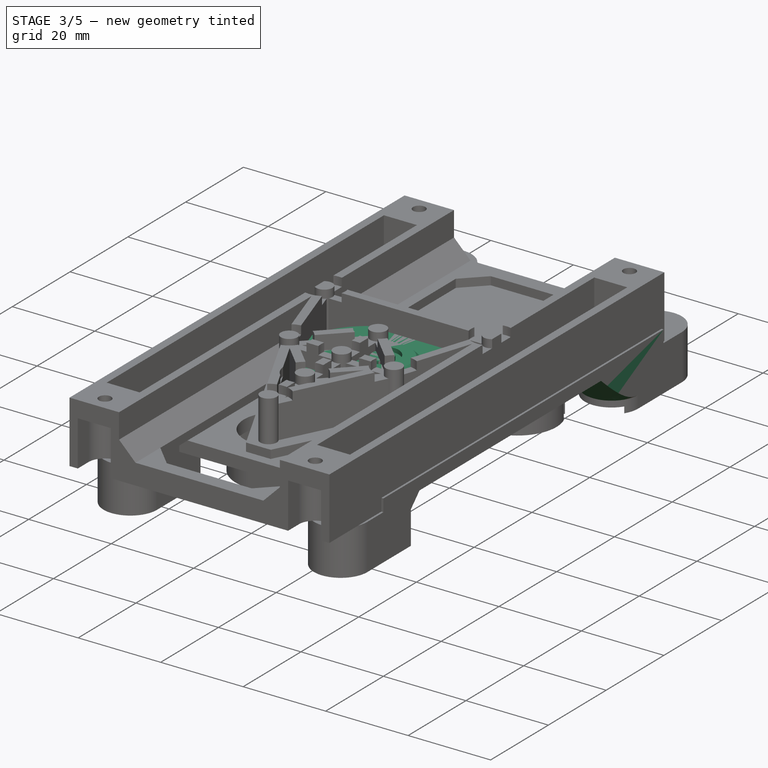
[diagram: stage 3 of 5 — iso view after this stage's code; geometry added in this stage tinted green]
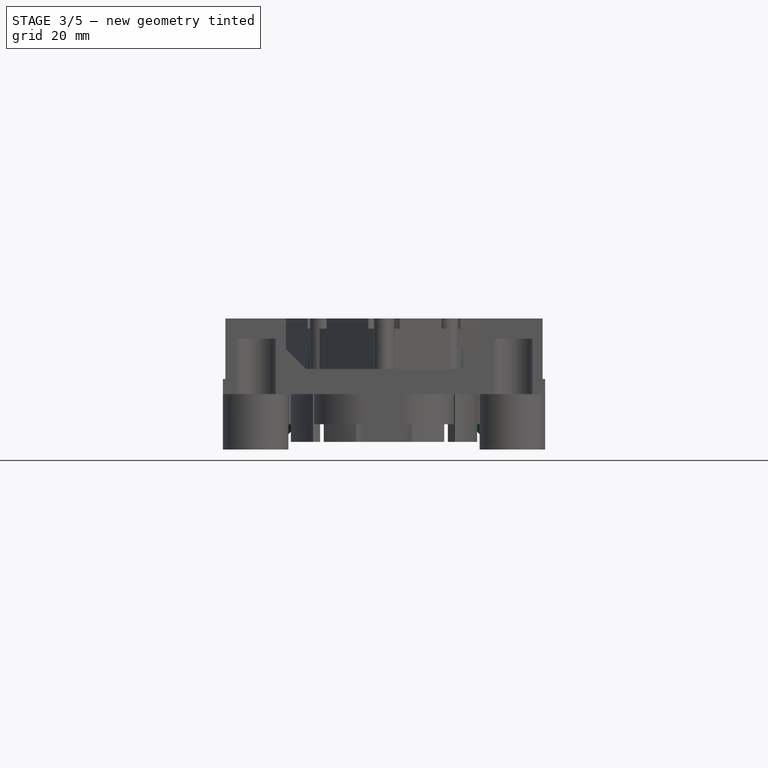
[diagram: stage 3 of 5 — front view after this stage's code; geometry added in this stage tinted green]
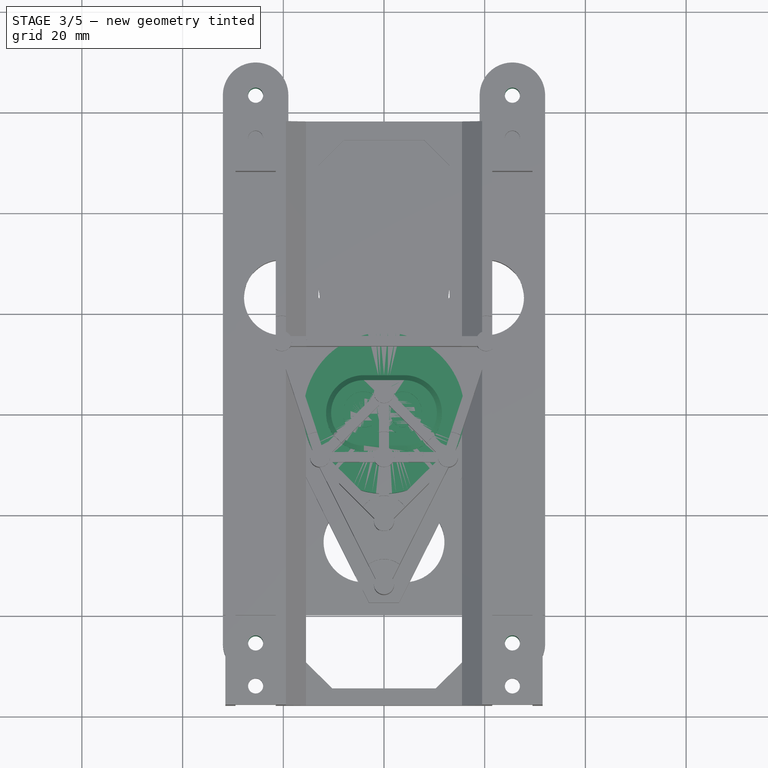
[diagram: stage 3 of 5 — top view after this stage's code; geometry added in this stage tinted green]
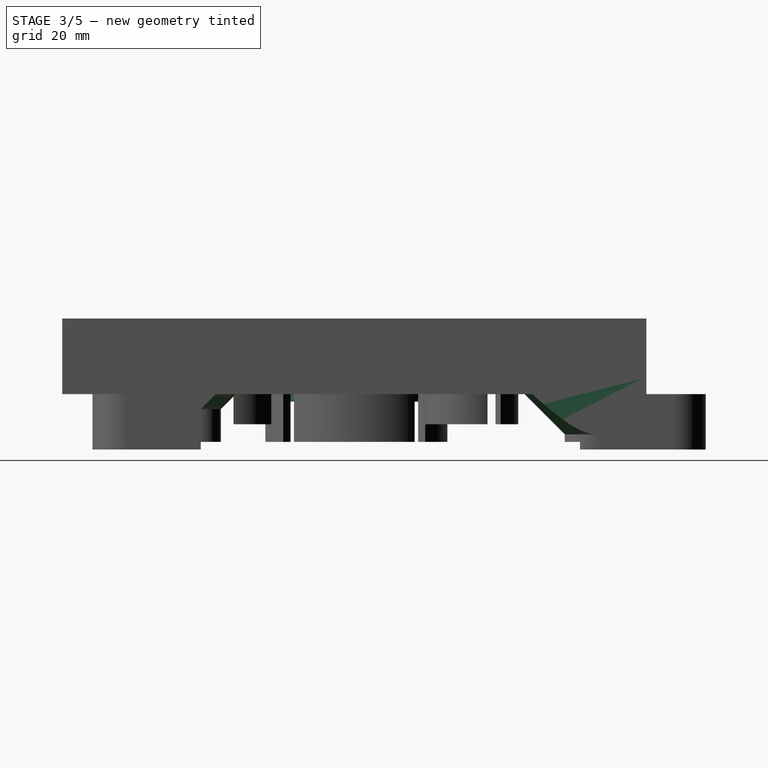
[diagram: stage 3 of 5 — right view after this stage's code; geometry added in this stage tinted green]
FEATURE [Part::Feature] Part__Feature004  label="TactileSwitch"
  Placement = pos=(-20,23,6.5) rot=(0,0,1;1.5708rad)
  shape: bbox 6.012 x 8.39 x 8.197 mm, 250 faces (baked)
FEATURE [Part::Feature] Part__Feature005  label="ARDUINO PRO MICRO"
  Placement = pos=(-7.5,50.5,10) rot=(-0.57735,0.57735,0.57735;4.18879rad)
  shape: bbox 17.8 x 34.61 x 4.268 mm, 3464 faces (baked)
FEATURE [Sketcher::SketchObject] Sketch016
  ArcFitTolerance = 1e-06
  AttachmentSupport = -> [XY_Plane008]
  FullyConstrained = true
  MakeInternals = false
  MapMode = 5
  sketch-geometry (4):
    g0: ArcOfCircle CenterX=-4 CenterY=0 CenterZ=0 NormalX=0 NormalY=0 NormalZ=1 AngleXU=0 Radius=7.5 StartAngle=1.5708 EndAngle=4.71239
    g1: ArcOfCircle CenterX=4 CenterY=2e-16 CenterZ=0 NormalX=0 NormalY=0 NormalZ=1 AngleXU=0 Radius=7.5 StartAngle=4.71239 EndAngle=7.85398
    g2: LineSegment StartX=-4 StartY=7.5 StartZ=0 EndX=4 EndY=7.5 EndZ=0
    g3: LineSegment StartX=-4 StartY=-7.5 StartZ=0 EndX=4 EndY=-7.5 EndZ=0
  constraints (10):
    c: Tangent(g0,g2) = 1.5708
    c: Tangent(g0,g3) = -1.5708
    c: Tangent(g1,g2) = 1.5708
    c: Tangent(g1,g3) = -1.5708
    c: Equal(g0,g1)
    c: Horizontal(g3)
    c: Distance(g0,g1) = 8
    c: Radius(g0) = 7.5
    c: PointOnObject(g0,g-1)
    c: DistanceX(g0,g-1) = 4
FEATURE [PartDesign::Pad] Pad013
  Direction = (0,0,1)
  Length = 11.5
  Length2 = 10
  Profile = -> Sketch016
  ReferenceAxis = -> Sketch016 [N_Axis]
  Refine = true
  Suppressed = false
  Type = 0
FEATURE [Sketcher::SketchObject] Sketch023
  ArcFitTolerance = 1e-06
  AttachmentSupport = -> [XZ_Plane008]
  ExternalGeometry = -> [Pad013]
  FullyConstrained = true
  MakeInternals = false
  MapMode = 5
  Placement = pos=(0,0,0) rot=(1,0,0;1.5708rad)
  sketch-geometry (4):
    g0: LineSegment StartX=-4 StartY=7 StartZ=0 EndX=-4 EndY=5 EndZ=0
    g1: LineSegment StartX=-14.5 StartY=5 StartZ=0 EndX=-4 EndY=5 EndZ=0
    g2: LineSegment StartX=-14.5 StartY=7 StartZ=0 EndX=-4 EndY=7 EndZ=0
    g3: LineSegment StartX=-14.5 StartY=7 StartZ=0 EndX=-14.5 EndY=5 EndZ=0
  constraints (12):
    c: Vertical(g0)
    c: Coincident(g1,g0)
    c: Horizontal(g1)
    c: Horizontal(g2)
    c: Distance(g-3,g2) = 4.5
    c: Coincident(g0,g2)
    c: Coincident(g3,g2)
    c: Coincident(g3,g1)
    c: Vertical(g3)
    c: Distance(g0,g3) = 10.5
    c: Distance(g3,g3) = 2
    c: Vertical(g0,g-3)
FEATURE [PartDesign::Pad] Pad017
  BaseFeature = -> Pad013
  Direction = (0,-1,2e-16)
  Length = 2.5
  Length2 = 10
  Midplane = true
  Profile = -> Sketch023
  ReferenceAxis = -> Sketch023 [N_Axis]
  Refine = true
  Suppressed = false
  Type = 0
FEATURE [PartDesign::Mirrored] Mirrored
  BaseFeature = -> Pad017
  MirrorPlane = -> Sketch023 [V_Axis]
  Originals = -> [Pad017]
  Refine = true
  Suppressed = false
  TransformMode = 0
FEATURE [App::Link] Link005  label="TactileSwitch002"
  LinkPlacement = pos=(0,-7.7486e-07,6.5) rot=(0,0,1;0rad)
  LinkedObject = -> Part__Feature004
  Placement = pos=(0,-7.7486e-07,6.5) rot=(0,0,1;0rad)
FEATURE [Sketcher::SketchObject] Sketch024
  ArcFitTolerance = 1e-06
  AttachmentSupport = -> [YZ_Plane009]
  FullyConstrained = true
  MakeInternals = false
  MapMode = 5
  Placement = pos=(0,0,0) rot=(0.57735,0.57735,0.57735;2.0944rad)
  sketch-geometry (4):
    g0: LineSegment StartX=7.5 StartY=-1.5 StartZ=0 EndX=16 EndY=-1.5 EndZ=0
    g1: LineSegment StartX=16 StartY=-1.5 StartZ=0 EndX=16 EndY=9.5 EndZ=0
    g2: LineSegment StartX=16 StartY=9.5 StartZ=0 EndX=7.5 EndY=9.5 EndZ=0
    g3: LineSegment StartX=7.5 StartY=9.5 StartZ=0 EndX=7.5 EndY=-1.5 EndZ=0
  constraints (12):
    c: Coincident(g0,g1)
    c: Vertical(g1)
    c: Coincident(g1,g2)
    c: Horizontal(g2)
    c: Coincident(g2,g3)
    c: Vertical(g3)
    c: Distance(g-2,g3) = 7.5
    c: Distance(g-1,g0) = 1.5
    c: Horizontal(g0)
    c: DistanceX(g-1,g1) = 16
    c: DistanceY(g1,g1) = 11
    c: Coincident(g0,g3)
FEATURE [PartDesign::Revolution] Revolution
  Angle = 360
  Angle2 = 60
  Axis = (0,0,1)
  Base = (0,0,0)
  Placement = pos=(0,0,0) rot=(1,1,1;2.0944rad)
  Profile = -> Sketch024
  ReferenceAxis = -> Sketch024 [V_Axis]
  Refine = true
  Reversed = true
  Suppressed = false
  Type = 0
FEATURE [Part::Part2DObjectPython] ShapeString001  # Draft 2D object (typed FeaturePython)
  FontFile = <path>
  Fuse = false
  Justification = 6
  JustificationReference = 0
  KeepLeftMargin = false
  MakeFace = true
  ObliqueAngle = 0
  Placement = pos=(-8,-4,11.5) rot=(0,0,1;0rad)
  ScaleToSize = true
  Size = 8
  String = GO
  Tracking = 0
FEATURE [PartDesign::Pocket] Pocket016
  BaseFeature = -> Mirrored
  Direction = (0,0,-1)
  Length = 1
  Length2 = 5
  Profile = -> ShapeString001
  ReferenceAxis = -> ShapeString001 [N_Axis]
  Refine = true
  Suppressed = false
  Type = 0
FEATURE [PartDesign::Body] Body008  label="BtnHome"
  AllowCompound = false
  Group = -> [Sketch037,Pad023,Chamfer003,Sketch038,Sketch039,Pad024,PolarPattern008,Pocket015,Sketch041,Pocket018]
  Origin = -> Origin010
  Placement = pos=(20.3,23.1,10) rot=(0,0,1;0rad)
  Tip = -> Pocket018
FEATURE [Sketcher::SketchObject] Sketch
  ArcFitTolerance = 1e-06
  AttachmentSupport = -> [Pocket013]
  FullyConstrained = true
  MakeInternals = false
  MapMode = 5
  Placement = pos=(0,0,-11) rot=(1,0,0;3.14159rad)
  sketch-geometry (10):
    g0: LineSegment StartX=-31 StartY=31 StartZ=0 EndX=-31 EndY=-49 EndZ=0
    g1: LineSegment StartX=-26 StartY=-54 StartZ=0 EndX=26 EndY=-54 EndZ=0
    g2: LineSegment StartX=31 StartY=-49 StartZ=0 EndX=31 EndY=31 EndZ=0
    g3: LineSegment StartX=26 StartY=36 StartZ=0 EndX=-26 EndY=36 EndZ=0
    g4: ArcOfCircle CenterX=-26 CenterY=31 CenterZ=0 NormalX=0 NormalY=0 NormalZ=1 AngleXU=0 Radius=5 StartAngle=1.5708 EndAngle=3.14159
    g5: ArcOfCircle CenterX=-26 CenterY=-49 CenterZ=0 NormalX=0 NormalY=0 NormalZ=1 AngleXU=0 Radius=5 StartAngle=3.14159 EndAngle=4.71239
    g6: ArcOfCircle CenterX=26 CenterY=-49 CenterZ=0 NormalX=0 NormalY=0 NormalZ=1 AngleXU=0 Radius=5 StartAngle=4.71239 EndAngle=6.28319
    g7: ArcOfCircle CenterX=26 CenterY=31 CenterZ=0 NormalX=0 NormalY=0 NormalZ=1 AngleXU=0 Radius=5 StartAngle=0 EndAngle=1.5708
    g8: GeomPoint [constr] X=-31 Y=36 Z=0
    g9: GeomPoint [constr] X=31 Y=-54 Z=0
  constraints (24):
    c: Tangent(g0,g4) = -1.5708
    c: Tangent(g0,g5) = -1.5708
    c: Tangent(g1,g5) = -1.5708
    c: Tangent(g1,g6) = -1.5708
    c: Tangent(g2,g6) = -1.5708
    c: Tangent(g2,g7) = -1.5708
    c: Tangent(g3,g7) = -1.5708
    c: Tangent(g3,g4) = -1.5708
    c: Vertical(g0)
    c: Vertical(g2)
    c: Horizontal(g1)
    c: Horizontal(g3)
    c: Equal(g4,g5)
    c: Equal(g5,g6)
    c: Equal(g6,g7)
    c: PointOnObject(g8,g0)
    c: PointOnObject(g8,g3)
    c: PointOnObject(g9,g1)
    c: PointOnObject(g9,g2)
    c: Distance(g0,g2) = 62
    c: Distance(g1,g3) = 90
    c: Radius(g5) = 5
    c: DistanceY(g-1,g7) = 31
    c: Distance(g2,g-2) = 31
FEATURE [PartDesign::Pocket] Pocket019
  BaseFeature = -> Pocket013
  Direction = (0,0,1)
  Length = 1.5
  Length2 = 5
  Profile = -> Sketch
  ReferenceAxis = -> Sketch [N_Axis]
  Refine = true
  Suppressed = false
  Type = 0
FEATURE [Sketcher::SketchObject] Sketch042
  ArcFitTolerance = 1e-06
  AttachmentSupport = -> [Pocket019]
  ExternalGeometry = -> [Pocket019]
  FullyConstrained = true
  MakeInternals = false
  MapMode = 5
  Placement = pos=(0,0,-11) rot=(1,0,0;3.14159rad)
  sketch-geometry (8):
    g0: Circle CenterX=-25.4 CenterY=30.5 CenterZ=0 NormalX=0 NormalY=0 NormalZ=1 AngleXU=0 Radius=1.5
    g1: Circle CenterX=25.4 CenterY=30.5 CenterZ=0 NormalX=0 NormalY=0 NormalZ=1 AngleXU=0 Radius=1.5
    g2: Circle CenterX=25.5 CenterY=-48.3 CenterZ=0 NormalX=0 NormalY=0 NormalZ=1 AngleXU=0 Radius=1.5
    g3: Circle CenterX=-25.5 CenterY=-48.3 CenterZ=0 NormalX=0 NormalY=0 NormalZ=1 AngleXU=0 Radius=1.5
    g4: Circle CenterX=-25.5 CenterY=45.5 CenterZ=0 NormalX=0 NormalY=0 NormalZ=1 AngleXU=0 Radius=1.5
    g5: Circle CenterX=25.5 CenterY=45.5 CenterZ=0 NormalX=0 NormalY=0 NormalZ=1 AngleXU=0 Radius=1.5
    g6: Circle CenterX=25.5 CenterY=-63.3 CenterZ=0 NormalX=0 NormalY=0 NormalZ=1 AngleXU=0 Radius=1.5
    g7: Circle CenterX=-25.5 CenterY=-63.3 CenterZ=0 NormalX=0 NormalY=0 NormalZ=1 AngleXU=0 Radius=1.5
  constraints (16):
    c: Diameter(g0) = 3
    c: Coincident(g0,g-3)
    c: Diameter(g1) = 3
    c: Coincident(g1,g-4)
    c: Diameter(g2) = 3
    c: Coincident(g2,g-6)
    c: Diameter(g3) = 3
    c: Coincident(g3,g-5)
    c: Diameter(g4) = 3
    c: Coincident(g4,g-7)
    c: Diameter(g5) = 3
    c: Coincident(g5,g-8)
    c: Diameter(g6) = 3
    c: Coincident(g6,g-9)
    c: Diameter(g7) = 3
    c: Coincident(g7,g-10)
FEATURE [PartDesign::Pocket] Pocket020
  BaseFeature = -> Pocket019
  Direction = (0,0,1)
  Length = 11
  Length2 = 5
  Profile = -> Sketch042
  ReferenceAxis = -> Sketch042 [N_Axis]
  Refine = true
  Suppressed = false
  Type = 0
FEATURE [PartDesign::Body] Body007  label="Btn4Direction"
  AllowCompound = false
  Group = -> [Sketch024,Revolution,Chamfer,Sketch026,Pocket007,PolarPattern001,Sketch027,Pad018,PolarPattern002,Chamfer001,Sketch028,Pocket008,PolarPattern003,Sketch044,Pocket021,PolarPattern010]
  Origin = -> Origin009
  Placement = pos=(0,0,11.5) rot=(0,0,1;0rad)
  Tip = -> PolarPattern010
FEATURE [PartDesign::Chamfer] Chamfer007
  Angle = 45
  Base = -> Pocket016 [Edge15]
  BaseFeature = -> Pocket016
  ChamferType = 0
  FlipDirection = false
  Refine = true
  Size = 1
  Size2 = 1
  SupportTransform = false
  Suppressed = false
  UseAllEdges = false
FEATURE [Sketcher::SketchObject] Sketch045
  ArcFitTolerance = 1e-06
  AttachmentSupport = -> [Chamfer007]
  FullyConstrained = true
  MakeInternals = false
  MapMode = 5
  Placement = pos=(0,0,0) rot=(1,0,0;3.14159rad)
  sketch-geometry (10):
    g0: LineSegment StartX=-4 StartY=2 StartZ=0 EndX=-4 EndY=-2 EndZ=0
    g1: LineSegment StartX=-2 StartY=-4 StartZ=0 EndX=2 EndY=-4 EndZ=0
    g2: LineSegment StartX=4 StartY=-2 StartZ=0 EndX=4 EndY=2 EndZ=0
    g3: LineSegment StartX=2 StartY=4 StartZ=0 EndX=-2 EndY=4 EndZ=0
    g4: ArcOfCircle CenterX=-2 CenterY=2 CenterZ=0 NormalX=0 NormalY=0 NormalZ=1 AngleXU=0 Radius=2 StartAngle=1.5708 EndAngle=3.14159
    g5: ArcOfCircle CenterX=-2 CenterY=-2 CenterZ=0 NormalX=0 NormalY=0 NormalZ=1 AngleXU=0 Radius=2 StartAngle=3.14159 EndAngle=4.71239
    g6: ArcOfCircle CenterX=2 CenterY=-2 CenterZ=0 NormalX=0 NormalY=0 NormalZ=1 AngleXU=0 Radius=2 StartAngle=4.71239 EndAngle=6.28319
    g7: ArcOfCircle CenterX=2 CenterY=2 CenterZ=0 NormalX=0 NormalY=0 NormalZ=1 AngleXU=0 Radius=2 StartAngle=0 EndAngle=1.5708
    g8: GeomPoint [constr] X=-4 Y=4 Z=0
    g9: GeomPoint [constr] X=4 Y=-4 Z=0
  constraints (23):
    c: Tangent(g0,g4) = -1.5708
    c: Tangent(g0,g5) = -1.5708
    c: Tangent(g1,g5) = -1.5708
    c: Tangent(g1,g6) = -1.5708
    c: Tangent(g2,g6) = -1.5708
    c: Tangent(g2,g7) = -1.5708
    c: Tangent(g3,g7) = -1.5708
    c: Tangent(g3,g4) = -1.5708
    c: Vertical(g0)
    c: Vertical(g2)
    c: Horizontal(g1)
    c: Horizontal(g3)
    c: Equal(g4,g5)
    c: Equal(g5,g6)
    c: Equal(g6,g7)
    c: PointOnObject(g8,g0)
    c: PointOnObject(g8,g3)
    c: PointOnObject(g9,g1)
    c: PointOnObject(g9,g2)
    c: Distance(g0,g2) = 8
    c: Distance(g1,g3) = 8
    c: Radius(g5) = 2
    c: Symmetric(g4,g6,g-1)
FEATURE [PartDesign::Pocket] Pocket022
  BaseFeature = -> Chamfer007
  Direction = (0,0,1)
  Length = 2
  Length2 = 5
  Profile = -> Sketch045
  ReferenceAxis = -> Sketch045 [N_Axis]
  Refine = true
  Suppressed = false
  Type = 0
FEATURE [PartDesign::Body] Body006  label="BtnGo"
  AllowCompound = false
  Group = -> [Sketch016,Pad013,Sketch023,Pad017,Mirrored,ShapeString001,Pocket016,Chamfer007,Sketch045,Pocket022]
  Origin = -> Origin008
  Placement = pos=(0,-25.5,9.5) rot=(0,0,1;0rad)
  Tip = -> Pocket022
FEATURE [App::LinkGroup] LinkGroup001  label="Buttons"
  ElementList = -> [Body002,Body003,Part__Feature004,Part__Feature005,Body006,Link004,Body007,Link005,Body008,Micro_USB_Plug_v10]
  LinkMode = 0
  Placement = pos=(2.274e-13,9.53674e-07,-4.7) rot=(0,0,1;0rad)
FEATURE [PartDesign::Chamfer] Chamfer008
  Angle = 45
  Base = -> Pocket020 [Edge18]
  BaseFeature = -> Pocket020
  ChamferType = 0
  FlipDirection = false
  Refine = true
  Size = 8
  Size2 = 1
  SupportTransform = false
  Suppressed = false
  UseAllEdges = false
FEATURE [PartDesign::Chamfer] Chamfer009
  Angle = 45
  Base = -> Chamfer008 [Edge5]
  BaseFeature = -> Chamfer008
  ChamferType = 0
  FlipDirection = false
  Refine = true
  Size = 8
  Size2 = 1
  SupportTransform = false
  Suppressed = false
  UseAllEdges = false
FEATURE [PartDesign::Chamfer] Chamfer010
  Angle = 45
  Base = -> Chamfer009 [Edge9,Edge13,Edge11]
  BaseFeature = -> Chamfer009
  ChamferType = 0
  FlipDirection = false
  Refine = true
  Size = 3
  Size2 = 1
  SupportTransform = false
  Suppressed = false
  UseAllEdges = false
FEATURE [PartDesign::Chamfer] Chamfer011
  Angle = 45
  Base = -> Chamfer010 [Edge16,Edge17,Edge15]
  BaseFeature = -> Chamfer010
  ChamferType = 0
  FlipDirection = false
  Refine = true
  Size = 3
  Size2 = 1
  SupportTransform = false
  Suppressed = false
  UseAllEdges = false
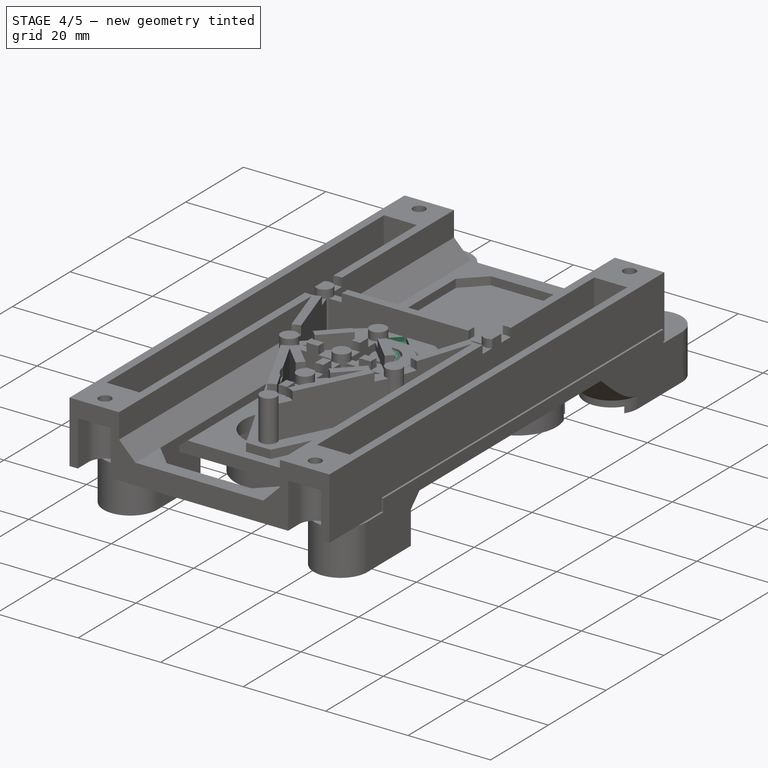
[diagram: stage 4 of 5 — iso view after this stage's code; geometry added in this stage tinted green]
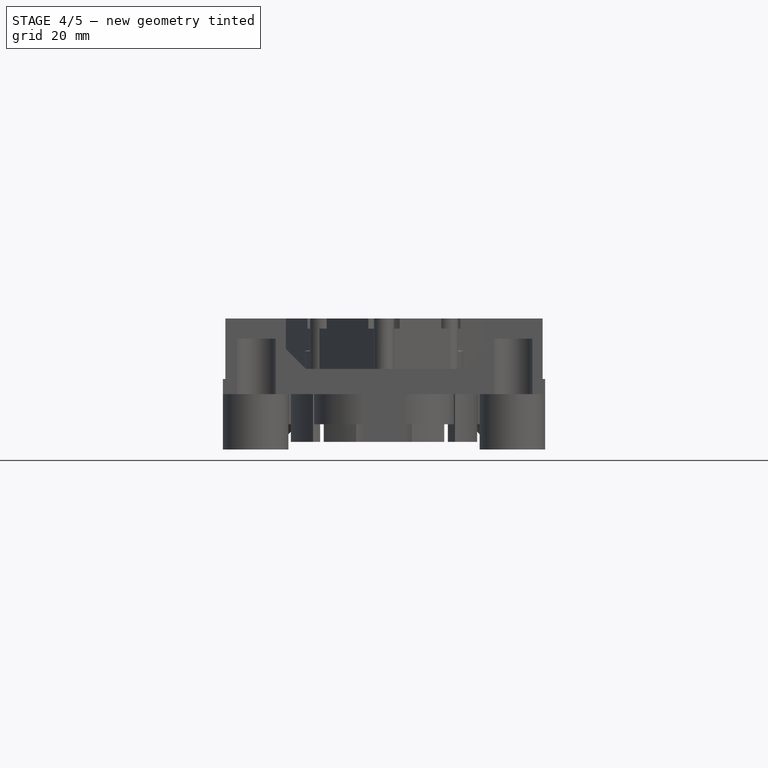
[diagram: stage 4 of 5 — front view after this stage's code; geometry added in this stage tinted green]
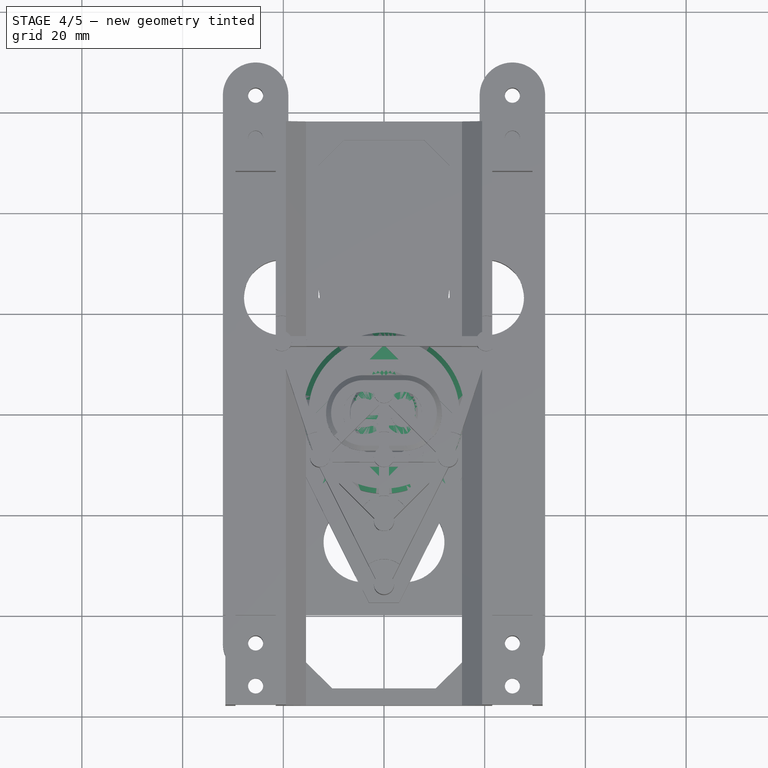
[diagram: stage 4 of 5 — top view after this stage's code; geometry added in this stage tinted green]
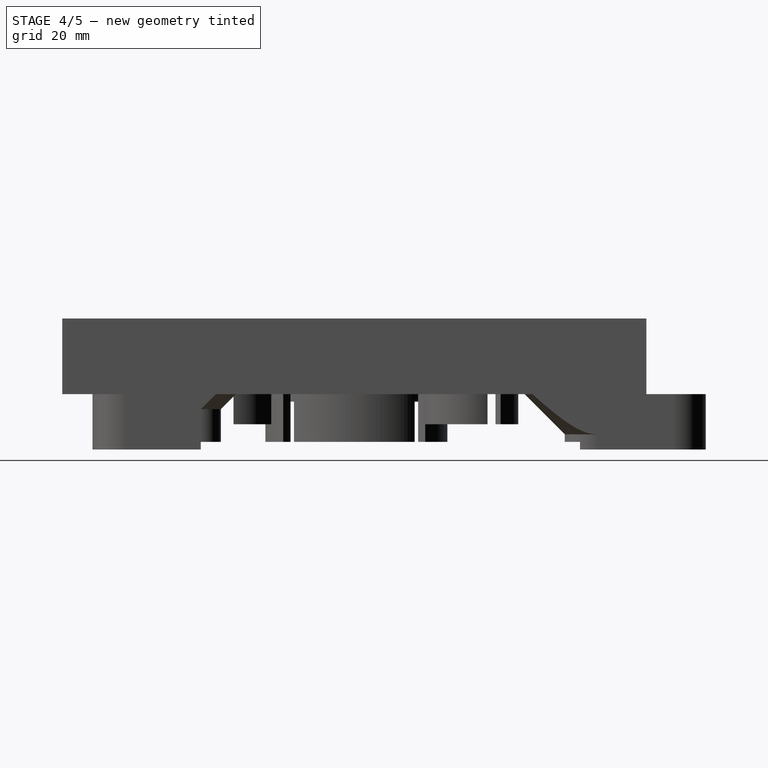
[diagram: stage 4 of 5 — right view after this stage's code; geometry added in this stage tinted green]
FEATURE [PartDesign::Chamfer] Chamfer
  Angle = 45
  Base = -> Revolution [Edge3]
  BaseFeature = -> Revolution
  ChamferType = 0
  FlipDirection = false
  Placement = pos=(0,0,0) rot=(1,1,1;2.0944rad)
  Refine = true
  Size = 1
  Size2 = 1
  SupportTransform = false
  Suppressed = false
  UseAllEdges = false
FEATURE [Sketcher::SketchObject] Sketch026
  ArcFitTolerance = 1e-06
  AttachmentSupport = -> [Chamfer]
  FullyConstrained = false
  MakeInternals = false
  MapMode = 5
  Placement = pos=(3e-16,0,-1.5) rot=(0.707107,0.707107,0;3.14159rad)
  sketch-geometry (4):
    g0: ArcOfCircle CenterX=0 CenterY=0 CenterZ=0 NormalX=0 NormalY=0 NormalZ=1 AngleXU=0 Radius=4 StartAngle=3.14159 EndAngle=6.28319
    g1: ArcOfCircle CenterX=-5e-16 CenterY=18.9943 CenterZ=0 NormalX=0 NormalY=0 NormalZ=1 AngleXU=0 Radius=4 StartAngle=0 EndAngle=3.14159
    g2: LineSegment StartX=-4 StartY=-1.3e-15 StartZ=0 EndX=-4 EndY=18.9943 EndZ=0
    g3: LineSegment StartX=4 StartY=-1e-15 StartZ=0 EndX=4 EndY=18.9943 EndZ=0
  constraints (8):
    c: Tangent(g0,g2) = 1.5708
    c: Tangent(g0,g3) = -1.5708
    c: Tangent(g1,g2) = 1.5708
    c: Tangent(g1,g3) = -1.5708
    c: Equal(g0,g1)
    c: Vertical(g3)
    c: Radius(g0) = 4
    c: Coincident(g0,g-1)
FEATURE [PartDesign::Pocket] Pocket007
  BaseFeature = -> Chamfer
  Direction = (0,0,1)
  Length = 1.5
  Length2 = 5
  Placement = pos=(0,0,0) rot=(1,1,1;2.0944rad)
  Profile = -> Sketch026
  ReferenceAxis = -> Sketch026 [N_Axis]
  Refine = true
  Suppressed = false
  Type = 0
FEATURE [PartDesign::PolarPattern] PolarPattern001
  Angle = 360
  Axis = -> Sketch026 [N_Axis]
  BaseFeature = -> Pocket007
  Mode = 0
  Occurrences = 4
  Offset = 120
  Originals = -> [Pocket007]
  Placement = pos=(0,0,0) rot=(1,1,1;2.0944rad)
  Refine = true
  Suppressed = false
  TransformMode = 0
FEATURE [Sketcher::SketchObject] Sketch027
  ArcFitTolerance = 1e-06
  AttachmentOffset = pos=(0,0,-6.5) rot=(0,0,1;0rad)
  AttachmentSupport = -> [PolarPattern001]
  ExternalGeometry = -> [PolarPattern001]
  FullyConstrained = true
  MakeInternals = false
  MapMode = 5
  Placement = pos=(3e-16,0,5) rot=(0.707107,0.707107,0;3.14159rad)
  sketch-geometry (4):
    g0: ArcOfCircle CenterX=0 CenterY=0 CenterZ=0 NormalX=0 NormalY=0 NormalZ=1 AngleXU=0 Radius=16 StartAngle=0.707584 EndAngle=0.863212
    g1: LineSegment StartX=10.4 StartY=12.1589 StartZ=0 EndX=12.1678 EndY=13.9267 EndZ=0
    g2: LineSegment StartX=12.1589 StartY=10.4 StartZ=0 EndX=13.9267 EndY=12.1678 EndZ=0
    g3: LineSegment StartX=12.1678 StartY=13.9267 StartZ=0 EndX=13.9267 EndY=12.1678 EndZ=0
  constraints (12):
    c: Distance(g1) = 2.5
    c: Angle(g-1,g1) = 0.785398
    c: Coincident(g1,g0)
    c: Distance(g2) = 2.5
    c: Angle(g-1,g2) = 0.785398
    c: Coincident(g2,g0)
    c: Coincident(g3,g1)
    c: Coincident(g3,g2)
    c: Coincident(g0,g-1)
    c: Radius(g0) = 16
    c: DistanceY(g-1,g0) = 10.4
    c: Distance(g0,g-2) = 10.4
FEATURE [PartDesign::Pad] Pad018
  BaseFeature = -> PolarPattern001
  Direction = (0,0,-1)
  Length = 3
  Length2 = 10
  Placement = pos=(0,0,0) rot=(1,1,1;2.0944rad)
  Profile = -> Sketch027
  ReferenceAxis = -> Sketch027 [N_Axis]
  Refine = true
  Suppressed = false
  Type = 0
FEATURE [PartDesign::PolarPattern] PolarPattern002
  Angle = 360
  Axis = -> Sketch027 [N_Axis]
  BaseFeature = -> Pad018
  Mode = 0
  Occurrences = 4
  Offset = 120
  Originals = -> [Pad018]
  Placement = pos=(0,0,0) rot=(1,1,1;2.0944rad)
  Refine = true
  Suppressed = false
  TransformMode = 0
FEATURE [PartDesign::Chamfer] Chamfer001
  Angle = 45
  Base = -> PolarPattern002 [Edge103]
  BaseFeature = -> PolarPattern002
  ChamferType = 0
  FlipDirection = false
  Placement = pos=(0,0,0) rot=(1,1,1;2.0944rad)
  Refine = true
  Size = 1
  Size2 = 1
  SupportTransform = false
  Suppressed = false
  UseAllEdges = false
FEATURE [Sketcher::SketchObject] Sketch028
  ArcFitTolerance = 1e-06
  AttachmentSupport = -> [Chamfer001]
  FullyConstrained = true
  MakeInternals = false
  MapMode = 5
  Placement = pos=(-2.1e-15,0,9.5) rot=(0,0,-1;1.5708rad)
  sketch-geometry (3):
    g0: LineSegment StartX=13.5 StartY=0 StartZ=0 EndX=10.6716 EndY=2.82843 EndZ=0
    g1: LineSegment StartX=10.6716 StartY=2.82843 StartZ=0 EndX=10.6716 EndY=-2.82843 EndZ=0
    g2: LineSegment StartX=10.6716 StartY=-2.82843 StartZ=0 EndX=13.5 EndY=0 EndZ=0
  constraints (9):
    c: PointOnObject(g0,g-1)
    c: Coincident(g0,g1)
    c: Vertical(g1)
    c: Coincident(g1,g2)
    c: Coincident(g2,g0)
    c: Angle(g-1,g0) = 2.35619
    c: Angle(g2,g-1) = 2.35619
    c: Distance(g0,g0) = 4
    c: DistanceX(g-1,g0) = 13.5
FEATURE [PartDesign::Pocket] Pocket008
  BaseFeature = -> Chamfer001
  Direction = (0,0,-1)
  Length = 1
  Length2 = 5
  Placement = pos=(0,0,0) rot=(1,1,1;2.0944rad)
  Profile = -> Sketch028
  ReferenceAxis = -> Sketch028 [N_Axis]
  Refine = true
  Suppressed = false
  Type = 0
FEATURE [PartDesign::PolarPattern] PolarPattern003
  Angle = 360
  Axis = -> Sketch028 [N_Axis]
  BaseFeature = -> Pocket008
  Mode = 0
  Occurrences = 4
  Offset = 120
  Originals = -> [Pocket008]
  Placement = pos=(0,0,0) rot=(1,1,1;2.0944rad)
  Refine = true
  Suppressed = false
  TransformMode = 0
FEATURE [Sketcher::SketchObject] Sketch006
  ArcFitTolerance = 1e-06
  AttachmentSupport = -> [XY_Plane005]
  FullyConstrained = true
  MakeInternals = false
  MapMode = 5
  sketch-geometry (1):
    g0: Circle CenterX=0 CenterY=0 CenterZ=0 NormalX=0 NormalY=0 NormalZ=1 AngleXU=0 Radius=7.25
  constraints (2):
    c: Diameter(g0) = 14.5
    c: Coincident(g0,g-1)
FEATURE [PartDesign::Pad] Pad005
  Direction = (0,0,1)
  Length = 11
  Length2 = 10
  Profile = -> Sketch006
  ReferenceAxis = -> Sketch006 [N_Axis]
  Refine = true
  Suppressed = false
  Type = 0
FEATURE [Sketcher::SketchObject] Sketch025
  ArcFitTolerance = 1e-06
  AttachmentSupport = -> [Pad005]
  FullyConstrained = true
  MakeInternals = false
  MapMode = 5
  Placement = pos=(0,0,0) rot=(1,0,0;3.14159rad)
  sketch-geometry (1):
    g0: Circle CenterX=0 CenterY=0 CenterZ=0 NormalX=0 NormalY=0 NormalZ=1 AngleXU=0 Radius=6
  constraints (2):
    c: Diameter(g0) = 12
    c: Coincident(g0,g-1)
FEATURE [PartDesign::Pocket] Pocket006
  BaseFeature = -> Pad005
  Direction = (0,0,1)
  Length = 2
  Length2 = 5
  Profile = -> Sketch025
  ReferenceAxis = -> Sketch025 [N_Axis]
  Refine = true
  Suppressed = false
  Type = 0
FEATURE [Part::Part2DObjectPython] ShapeString  # Draft 2D object (typed FeaturePython)
  FontFile = <path>
  Fuse = false
  Justification = 6
  JustificationReference = 0
  KeepLeftMargin = false
  MakeFace = true
  ObliqueAngle = 0
  Placement = pos=(-5,-2.5,11) rot=(0,0,1;0rad)
  ScaleToSize = true
  Size = 5
  String = OK
  Tracking = 0
FEATURE [PartDesign::Pocket] Pocket012
  BaseFeature = -> Pocket006
  Direction = (0,0,-1)
  Length = 1
  Length2 = 5
  Profile = -> ShapeString
  ReferenceAxis = -> ShapeString [N_Axis]
  Refine = true
  Suppressed = false
  Type = 0
FEATURE [Part::Feature] Part__Feature006  label="Cable"
  shape: bbox 3.5 x 3.5 x 60 mm, 3 faces (baked)
FEATURE [Part::Feature] Part__Feature007  label="Micro_USB_Plug_Connector"
  shape: bbox 6.85 x 2.55 x 7.5 mm, 144 faces, 4 solids (baked)
FEATURE [Part::Feature] Part__Feature008  label="COMPOUND"
  shape: bbox 10.8 x 6.802 x 33.2 mm, 448 faces, 6 solids (baked)
FEATURE [App::Part] Micro_USB_Plug_v10  label="Micro_USB_Plug v10"
  Group = -> [Part__Feature006,Part__Feature007,Part__Feature008]
  Origin = -> Origin
  Placement = pos=(6e-16,57.5,12.8) rot=(0,-0.707107,0.707107;3.14159rad)
FEATURE [PartDesign::Chamfer] Chamfer006
  Angle = 45
  Base = -> Pocket012 [Edge3]
  BaseFeature = -> Pocket012
  ChamferType = 0
  FlipDirection = false
  Refine = true
  Size = 1
  Size2 = 1
  SupportTransform = false
  Suppressed = false
  UseAllEdges = false
FEATURE [PartDesign::Body] Body003  label="BtnOk"
  AllowCompound = false
  Group = -> [Sketch006,Pad005,Sketch025,Pocket006,ShapeString,Pocket012,Chamfer006,Sketch043,Pad,PolarPattern009]
  Origin = -> Origin005
  Placement = pos=(0,0,10) rot=(0,0,1;0rad)
  Tip = -> PolarPattern009
FEATURE [Sketcher::SketchObject] Sketch044
  ArcFitTolerance = 1e-06
  AttachmentSupport = -> [PolarPattern003]
  FullyConstrained = false
  MakeInternals = false
  MapMode = 5
  Placement = pos=(3e-16,0,-1.5) rot=(0.707107,0.707107,0;3.14159rad)
  sketch-geometry (4):
    g0: LineSegment StartX=-9.7 StartY=1.3 StartZ=0 EndX=-9.7 EndY=-1.3 EndZ=0
    g1: LineSegment StartX=-9.7 StartY=-1.3 StartZ=0 EndX=-6.29182 EndY=-1.3 EndZ=0
    g2: LineSegment StartX=-6.29182 StartY=-1.3 StartZ=0 EndX=-6.29182 EndY=1.3 EndZ=0
    g3: LineSegment StartX=-6.29182 StartY=1.3 StartZ=0 EndX=-9.7 EndY=1.3 EndZ=0
  constraints (11):
    c: Coincident(g0,g1)
    c: Coincident(g1,g2)
    c: Coincident(g2,g3)
    c: Coincident(g3,g0)
    c: Vertical(g0)
    c: Vertical(g2)
    c: Horizontal(g1)
    c: Horizontal(g3)
    c: Distance(g-1,g3) = 1.3
    c: Distance(g-1,g1) = 1.3
    c: Distance(g0,g-2) = 9.7
FEATURE [PartDesign::Pocket] Pocket021
  BaseFeature = -> PolarPattern003
  Direction = (-1.3e-15,0,1)
  Length = 7
  Length2 = 5
  Placement = pos=(0,0,0) rot=(1,1,1;2.0944rad)
  Profile = -> Sketch044
  ReferenceAxis = -> Sketch044 [N_Axis]
  Refine = true
  Suppressed = false
  Type = 0
FEATURE [PartDesign::PolarPattern] PolarPattern010
  Angle = 360
  Axis = -> Sketch044 [N_Axis]
  BaseFeature = -> Pocket021
  Mode = 0
  Occurrences = 3
  Offset = 120
  Originals = -> [Pocket021]
  Placement = pos=(0,0,0) rot=(1,1,1;2.0944rad)
  Refine = true
  Suppressed = false
  TransformMode = 0
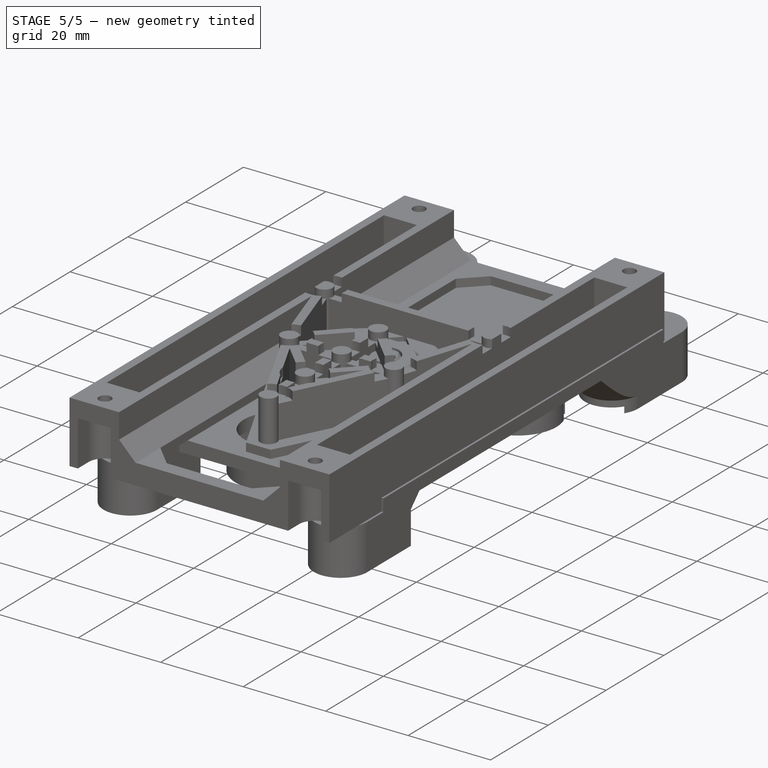
[diagram: stage 5 of 5 — iso view after this stage's code; geometry added in this stage tinted green]
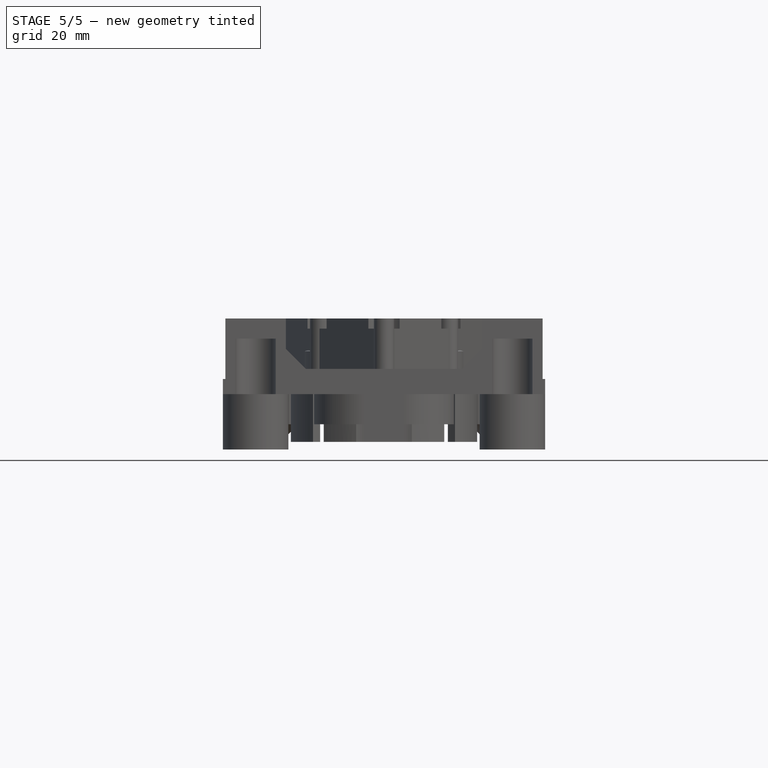
[diagram: stage 5 of 5 — front view after this stage's code; geometry added in this stage tinted green]
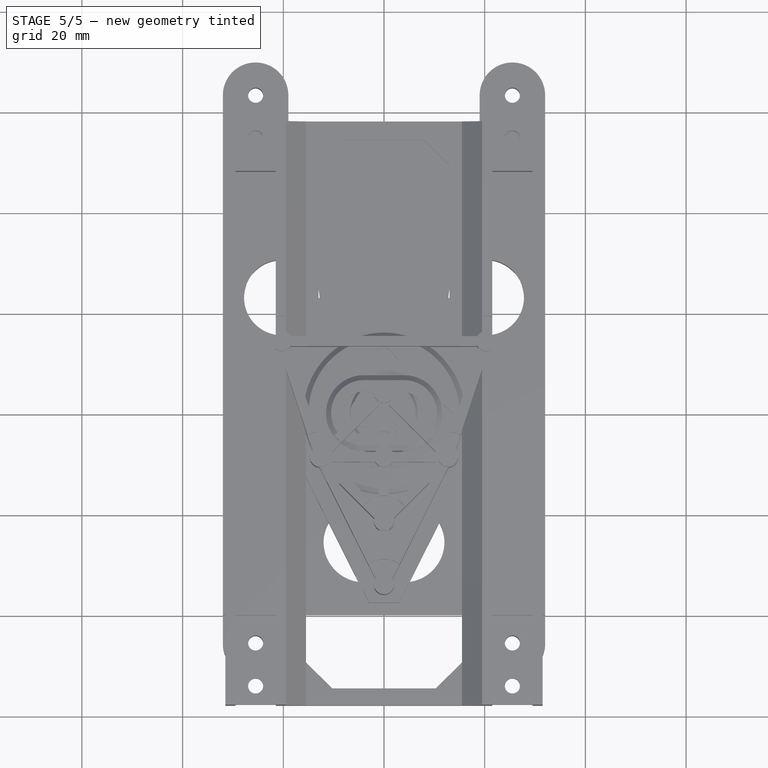
[diagram: stage 5 of 5 — top view after this stage's code; geometry added in this stage tinted green]
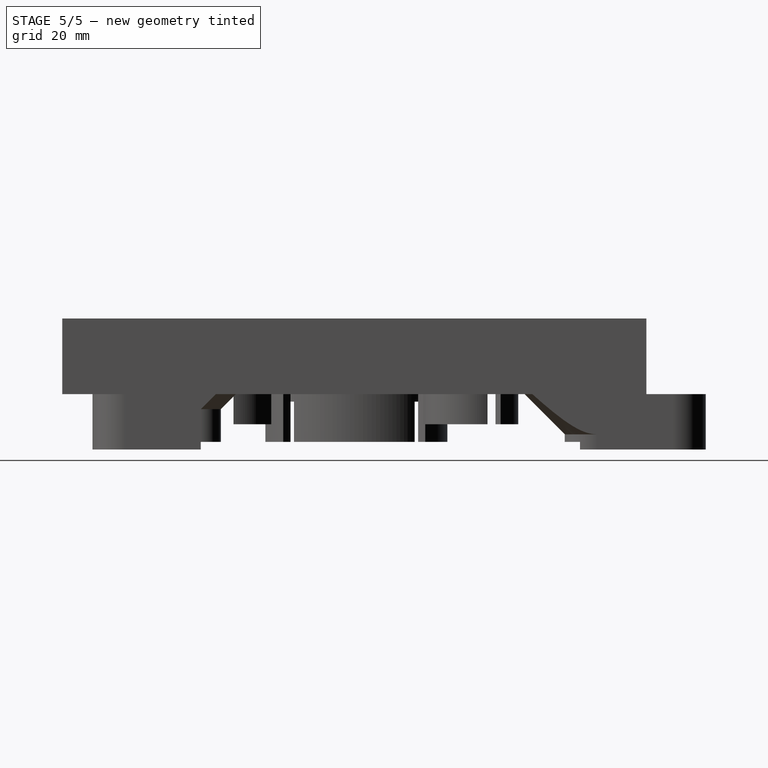
[diagram: stage 5 of 5 — right view after this stage's code; geometry added in this stage tinted green]
FEATURE [Sketcher::SketchObject] Sketch002
  ArcFitTolerance = 1e-06
  AttachmentSupport = -> [Pad001]
  FullyConstrained = true
  MakeInternals = false
  MapMode = 5
  Placement = pos=(0,0,3) rot=(0,0,1;0rad)
  sketch-geometry (7):
    g0: Circle CenterX=-20.3 CenterY=23.07 CenterZ=0 NormalX=0 NormalY=0 NormalZ=1 AngleXU=0 Radius=7.5
    g1: Circle CenterX=20.3 CenterY=23.07 CenterZ=0 NormalX=0 NormalY=0 NormalZ=1 AngleXU=0 Radius=7.5
    g2: Circle CenterX=0 CenterY=0 CenterZ=0 NormalX=0 NormalY=0 NormalZ=1 AngleXU=0 Radius=16.5
    g3: ArcOfCircle CenterX=-4 CenterY=-25.5 CenterZ=0 NormalX=0 NormalY=0 NormalZ=1 AngleXU=0 Radius=8 StartAngle=1.5708 EndAngle=4.71239
    g4: ArcOfCircle CenterX=4 CenterY=-25.5 CenterZ=0 NormalX=0 NormalY=0 NormalZ=1 AngleXU=0 Radius=8 StartAngle=4.71239 EndAngle=7.85398
    g5: LineSegment StartX=-4 StartY=-17.5 StartZ=0 EndX=4 EndY=-17.5 EndZ=0
    g6: LineSegment StartX=-4 StartY=-33.5 StartZ=0 EndX=4 EndY=-33.5 EndZ=0
  constraints (18):
    c: Diameter(g0) = 15
    c: DistanceX(g0,g-1) = 20.3
    c: DistanceY(g-1,g0) = 23.07
    c: Diameter(g1) = 15
    c: DistanceX(g-1,g1) = 20.3
    c: DistanceY(g-1,g1) = 23.07
    c: Diameter(g2) = 33
    c: Coincident(g2,g-1)
    c: Tangent(g3,g5) = 1.5708
    c: Tangent(g3,g6) = -1.5708
    c: Tangent(g4,g5) = 1.5708
    c: Tangent(g4,g6) = -1.5708
    c: Equal(g3,g4)
    c: Horizontal(g6)
    c: Distance(g3,g4) = 8
    c: Radius(g3) = 8
    c: DistanceY(g4,g-1) = 25.5
    c: Distance(g3,g-2) = 4
FEATURE [Part::Feature] Part__Feature  label="Board~YX9s"
  shape: bbox 60.93 x 88.87 x 1.6 mm, 130 faces (baked)
FEATURE [Part::Feature] Part__Feature001  label="TopCopper~YX9s"
  Placement = pos=(0,0,1.61003) rot=(0,0,1;0rad)
  shape: bbox 45.91 x 80.72 x 2e-07 mm, 56 faces, 0 solids (baked)
FEATURE [Part::Feature] Part__Feature002  label="BottomCopper~YX9s"
  Placement = pos=(0,0,-0.01) rot=(0,0,1;0rad)
  shape: bbox 53.21 x 84.71 x 2e-07 mm, 40 faces, 0 solids (baked)
FEATURE [Part::Feature] Part__Feature003  label="TopSilkscreen~YX9s"
  Placement = pos=(0,0,1.62003) rot=(0,0,1;0rad)
  shape: bbox 51.45 x 81.85 x 2e-07 mm, 139 faces, 0 solids (baked)
FEATURE [App::Part] EasyEDA_PCB_Model_YX9s  label="EasyEDA PCB Model~YX9s"
  Group = -> [Part__Feature,Part__Feature001,Part__Feature002,Part__Feature003]
  Origin = -> Origin003
  Placement = pos=(0,0,0.9) rot=(0,0,1;0rad)
FEATURE [Sketcher::SketchObject] Sketch004
  ArcFitTolerance = 1e-06
  AttachmentSupport = -> [XY_Plane004]
  FullyConstrained = true
  MakeInternals = false
  MapMode = 5
  sketch-geometry (1):
    g0: Circle CenterX=0 CenterY=0 CenterZ=0 NormalX=0 NormalY=0 NormalZ=1 AngleXU=0 Radius=7.25
  constraints (2):
    c: Diameter(g0) = 14.5
    c: Coincident(g0,g-1)
FEATURE [PartDesign::Pad] Pad003
  Direction = (0,0,1)
  Length = 11
  Length2 = 10
  Profile = -> Sketch004
  ReferenceAxis = -> Sketch004 [N_Axis]
  Refine = true
  Suppressed = false
  Type = 0
FEATURE [PartDesign::Chamfer] Chamfer002
  Angle = 45
  Base = -> Pad003 [Edge3]
  BaseFeature = -> Pad003
  ChamferType = 0
  FlipDirection = false
  Refine = true
  Size = 1
  Size2 = 1
  SupportTransform = false
  Suppressed = false
  UseAllEdges = false
FEATURE [Sketcher::SketchObject] Sketch035
  ArcFitTolerance = 1e-06
  AttachmentSupport = -> [Chamfer002]
  FullyConstrained = false
  MakeInternals = false
  MapMode = 5
  Placement = pos=(0,0,11) rot=(0,0,1;0rad)
  sketch-geometry (11):
    g0: LineSegment StartX=-0.858818 StartY=4.92477 StartZ=0 EndX=-3.85882 EndY=1.92477 EndZ=0
    g1: LineSegment StartX=-3.85882 StartY=1.92477 StartZ=0 EndX=-0.858818 EndY=-1.07523 EndZ=0
    g2: LineSegment StartX=-0.858818 StartY=-1.07523 StartZ=0 EndX=-0.858818 EndY=0.924774 EndZ=0
    g3: LineSegment StartX=-0.858818 StartY=0.924774 StartZ=0 EndX=0.385732 EndY=0.924774 EndZ=0
    g4: LineSegment StartX=-0.858818 StartY=4.92477 StartZ=0 EndX=-0.858818 EndY=2.92477 EndZ=0
    g5: LineSegment StartX=-0.858818 StartY=2.92477 StartZ=0 EndX=0.385732 EndY=2.92477 EndZ=0
    g6: ArcOfCircle CenterX=0.385732 CenterY=-0.648527 CenterZ=0 NormalX=0 NormalY=0 NormalZ=1 AngleXU=0 Radius=1.5733 StartAngle=4.71239 EndAngle=7.85398
    g7: ArcOfCircle CenterX=0.385732 CenterY=-0.648527 CenterZ=0 NormalX=0 NormalY=0 NormalZ=1 AngleXU=0 Radius=3.5733 StartAngle=4.71239 EndAngle=7.85398
    g8: LineSegment StartX=0.385731 StartY=-2.22183 StartZ=0 EndX=-1.24855 EndY=-2.22183 EndZ=0
    g9: LineSegment StartX=-1.24855 StartY=-2.22183 StartZ=0 EndX=-1.24855 EndY=-4.22183 EndZ=0
    g10: LineSegment StartX=-1.24855 StartY=-4.22183 StartZ=0 EndX=0.38573 EndY=-4.22183 EndZ=0
  constraints (26):
    c: Coincident(g0,g1)
    c: Coincident(g1,g2)
    c: Coincident(g2,g3)
    c: Horizontal(g3)
    c: Coincident(g0,g4)
    c: Coincident(g4,g5)
    c: Horizontal(g5)
    c: Vertical(g4)
    c: Vertical(g2)
    c: Vertical(g4,g2)
    c: Distance(g4,g4) = 2
    c: DistanceY(g2,g2) = 2
    c: Distance(g3,g5) = 2
    c: Angle(g1,g0) = 1.5708
    c: DistanceY(g0,g4) = 1
    c: Coincident(g6,g3)
    c: Vertical(g6,g3)
    c: Vertical(g5,g3)
    c: Coincident(g7,g6)
    c: Coincident(g7,g5)
    c: Tangent(g6,g8) = 1.5708
    c: Coincident(g8,g9)
    c: Vertical(g9)
    c: Coincident(g9,g10)
    c: Coincident(g10,g7)
    c: Horizontal(g10)
FEATURE [Sketcher::SketchObject] Sketch036
  ArcFitTolerance = 1e-06
  AttachmentOffset = pos=(0,0,-6.5) rot=(0,0,1;0rad)
  AttachmentSupport = -> [Chamfer002]
  ExternalGeometry = -> [Chamfer002]
  FullyConstrained = true
  MakeInternals = false
  MapMode = 5
  Placement = pos=(0,0,6.5) rot=(1,0,0;3.14159rad)
  sketch-geometry (4):
    g0: ArcOfCircle CenterX=0 CenterY=0 CenterZ=0 NormalX=0 NormalY=0 NormalZ=1 AngleXU=0 Radius=7.25 StartAngle=1.40451 EndAngle=1.73708
    g1: LineSegment StartX=-1.2 StartY=7.15 StartZ=0 EndX=-1.2 EndY=9.45 EndZ=0
    g2: LineSegment StartX=-1.2 StartY=9.45 StartZ=0 EndX=1.2 EndY=9.45 EndZ=0
    g3: LineSegment StartX=1.2 StartY=9.45 StartZ=0 EndX=1.2 EndY=7.15 EndZ=0
  constraints (12):
    c: Coincident(g0,g-1)
    c: PointOnObject(g0,g-3)
    c: Coincident(g0,g1)
    c: Coincident(g1,g2)
    c: Horizontal(g2)
    c: Coincident(g2,g3)
    c: Coincident(g3,g0)
    c: Vertical(g3)
    c: Vertical(g1)
    c: Distance(g-2,g1) = 1.2
    c: Distance(g-2,g3) = 1.2
    c: DistanceY(g3,g3) = 2.3
FEATURE [PartDesign::Pad] Pad022
  BaseFeature = -> Chamfer002
  Direction = (0,0,-1)
  Length = 2.5
  Length2 = 10
  Profile = -> Sketch036
  ReferenceAxis = -> Sketch036 [N_Axis]
  Refine = true
  Suppressed = false
  Type = 0
FEATURE [PartDesign::PolarPattern] PolarPattern007
  Angle = 360
  Axis = -> Sketch036 [N_Axis]
  BaseFeature = -> Pad022
  Mode = 0
  Occurrences = 3
  Offset = 120
  Originals = -> [Pad022]
  Refine = true
  Suppressed = false
  TransformMode = 0
FEATURE [PartDesign::Pocket] Pocket014
  BaseFeature = -> PolarPattern007
  Direction = (0,0,-1)
  Length = 1
  Length2 = 5
  Profile = -> Sketch035
  ReferenceAxis = -> Sketch035 [N_Axis]
  Refine = true
  Suppressed = false
  Type = 0
FEATURE [Sketcher::SketchObject] Sketch037
  ArcFitTolerance = 1e-06
  AttachmentSupport = -> [XY_Plane010]
  FullyConstrained = true
  MakeInternals = false
  MapMode = 5
  sketch-geometry (1):
    g0: Circle CenterX=0 CenterY=0 CenterZ=0 NormalX=0 NormalY=0 NormalZ=1 AngleXU=0 Radius=7.25
  constraints (2):
    c: Diameter(g0) = 14.5
    c: Coincident(g0,g-1)
FEATURE [PartDesign::Pad] Pad023
  Direction = (0,0,1)
  Length = 11
  Length2 = 10
  Profile = -> Sketch037
  ReferenceAxis = -> Sketch037 [N_Axis]
  Refine = true
  Suppressed = false
  Type = 0
FEATURE [PartDesign::Chamfer] Chamfer003
  Angle = 45
  Base = -> Pad023 [Edge3]
  BaseFeature = -> Pad023
  ChamferType = 0
  FlipDirection = false
  Refine = true
  Size = 1
  Size2 = 1
  SupportTransform = false
  Suppressed = false
  UseAllEdges = false
FEATURE [Sketcher::SketchObject] Sketch038
  ArcFitTolerance = 1e-06
  AttachmentSupport = -> [Chamfer003]
  FullyConstrained = false
  MakeInternals = false
  MapMode = 5
  Placement = pos=(0,0,11) rot=(0,0,1;0rad)
  sketch-geometry (12):
    g0: LineSegment StartX=-3.5 StartY=1.00678 StartZ=0 EndX=-3.5 EndY=-3.31324 EndZ=0
    g1: LineSegment StartX=-3.5 StartY=-3.31324 StartZ=0 EndX=3.5 EndY=-3.31324 EndZ=0
    g2: LineSegment StartX=3.5 StartY=-3.31324 StartZ=0 EndX=3.5 EndY=1.00678 EndZ=0
    g3: LineSegment StartX=-3.5 StartY=1.00678 StartZ=0 EndX=-5.5 EndY=1.00678 EndZ=0
    g4: LineSegment StartX=-5.5 StartY=1.00678 StartZ=0 EndX=0 EndY=4.88144 EndZ=0
    g5: LineSegment StartX=0 StartY=4.88144 StartZ=0 EndX=5.5 EndY=1.00678 EndZ=0
    g6: LineSegment StartX=5.5 StartY=1.00678 StartZ=0 EndX=3.5 EndY=1.00678 EndZ=0
    g7: LineSegment StartX=-2.5 StartY=-1 StartZ=0 EndX=-0.5 EndY=-1 EndZ=0
    g8: LineSegment StartX=-0.5 StartY=-1 StartZ=0 EndX=-0.5 EndY=1 EndZ=0
    g9: LineSegment StartX=-0.5 StartY=1 StartZ=0 EndX=-2.5 EndY=1 EndZ=0
    g10: LineSegment StartX=-2.5 StartY=1 StartZ=0 EndX=-2.5 EndY=-1 EndZ=0
    g11: GeomPoint [constr] X=-1.5 Y=0 Z=0
  constraints (31):
    c: Coincident(g0,g1)
    c: Coincident(g1,g2)
    c: Vertical(g0)
    c: Vertical(g2)
    c: Horizontal(g1)
    c: Coincident(g0,g3)
    c: Coincident(g3,g4)
    c: PointOnObject(g4,g-2)
    c: Coincident(g4,g5)
    c: Coincident(g5,g6)
    c: Coincident(g6,g2)
    c: Horizontal(g6)
    c: Horizontal(g3)
    c: Horizontal(g0,g2)
    c: DistanceX(g3,g3) = 2
    c: DistanceX(g6,g6) = 2
    c: DistanceX(g0,g-1) = 3.5
    c: Distance(g1,g-2) = 3.5
    c: Coincident(g7,g8)
    c: Coincident(g8,g9)
    c: Coincident(g9,g10)
    c: Coincident(g10,g7)
    c: Horizontal(g7)
    c: Horizontal(g9)
    c: Vertical(g8)
    c: Vertical(g10)
    c: Symmetric(g9,g7,g11)
    c: Distance(g8,g10) = 2
    c: Distance(g7,g9) = 2
    c: PointOnObject(g11,g-1)
    c: DistanceX(g11,g-1) = 1.5
FEATURE [Sketcher::SketchObject] Sketch039
  ArcFitTolerance = 1e-06
  AttachmentOffset = pos=(0,0,-6.5) rot=(0,0,1;0rad)
  AttachmentSupport = -> [Chamfer003]
  ExternalGeometry = -> [Chamfer003]
  FullyConstrained = true
  MakeInternals = false
  MapMode = 5
  Placement = pos=(0,0,6.5) rot=(1,0,0;3.14159rad)
  sketch-geometry (4):
    g0: ArcOfCircle CenterX=0 CenterY=0 CenterZ=0 NormalX=0 NormalY=0 NormalZ=1 AngleXU=0 Radius=7.25 StartAngle=1.40451 EndAngle=1.73708
    g1: LineSegment StartX=-1.2 StartY=7.15 StartZ=0 EndX=-1.2 EndY=9.45 EndZ=0
    g2: LineSegment StartX=-1.2 StartY=9.45 StartZ=0 EndX=1.2 EndY=9.45 EndZ=0
    g3: LineSegment StartX=1.2 StartY=9.45 StartZ=0 EndX=1.2 EndY=7.15 EndZ=0
  constraints (12):
    c: Coincident(g0,g-1)
    c: PointOnObject(g0,g-3)
    c: Coincident(g0,g1)
    c: Coincident(g1,g2)
    c: Horizontal(g2)
    c: Coincident(g2,g3)
    c: Coincident(g3,g0)
    c: Vertical(g3)
    c: Vertical(g1)
    c: Distance(g-2,g1) = 1.2
    c: Distance(g-2,g3) = 1.2
    c: DistanceY(g3,g3) = 2.3
FEATURE [PartDesign::Pad] Pad024
  BaseFeature = -> Chamfer003
  Direction = (0,0,-1)
  Length = 2.5
  Length2 = 10
  Profile = -> Sketch039
  ReferenceAxis = -> Sketch039 [N_Axis]
  Refine = true
  Suppressed = false
  Type = 0
FEATURE [PartDesign::PolarPattern] PolarPattern008
  Angle = 360
  Axis = -> Sketch039 [N_Axis]
  BaseFeature = -> Pad024
  Mode = 0
  Occurrences = 3
  Offset = 120
  Originals = -> [Pad024]
  Refine = true
  Suppressed = false
  TransformMode = 0
FEATURE [PartDesign::Pocket] Pocket015
  BaseFeature = -> PolarPattern008
  Direction = (0,0,-1)
  Length = 1
  Length2 = 5
  Profile = -> Sketch038
  ReferenceAxis = -> Sketch038 [N_Axis]
  Refine = true
  Suppressed = false
  Type = 0
FEATURE [Sketcher::SketchObject] Sketch040
  ArcFitTolerance = 1e-06
  AttachmentSupport = -> [Pocket014]
  FullyConstrained = true
  MakeInternals = false
  MapMode = 5
  Placement = pos=(0,0,0) rot=(1,0,0;3.14159rad)
  sketch-geometry (10):
    g0: LineSegment StartX=-4 StartY=2.5 StartZ=0 EndX=-4 EndY=-2.5 EndZ=0
    g1: LineSegment StartX=-2.5 StartY=-4 StartZ=0 EndX=2.5 EndY=-4 EndZ=0
    g2: LineSegment StartX=4 StartY=-2.5 StartZ=0 EndX=4 EndY=2.5 EndZ=0
    g3: LineSegment StartX=2.5 StartY=4 StartZ=0 EndX=-2.5 EndY=4 EndZ=0
    g4: ArcOfCircle CenterX=-2.5 CenterY=2.5 CenterZ=0 NormalX=0 NormalY=0 NormalZ=1 AngleXU=0 Radius=1.5 StartAngle=1.5708 EndAngle=3.14159
    g5: ArcOfCircle CenterX=-2.5 CenterY=-2.5 CenterZ=0 NormalX=0 NormalY=0 NormalZ=1 AngleXU=0 Radius=1.5 StartAngle=3.14159 EndAngle=4.71239
    g6: ArcOfCircle CenterX=2.5 CenterY=-2.5 CenterZ=0 NormalX=0 NormalY=0 NormalZ=1 AngleXU=0 Radius=1.5 StartAngle=4.71239 EndAngle=6.28319
    g7: ArcOfCircle CenterX=2.5 CenterY=2.5 CenterZ=0 NormalX=0 NormalY=0 NormalZ=1 AngleXU=0 Radius=1.5 StartAngle=0 EndAngle=1.5708
    g8: GeomPoint [constr] X=-4 Y=4 Z=0
    g9: GeomPoint [constr] X=4 Y=-4 Z=0
  constraints (23):
    c: Tangent(g0,g4) = -1.5708
    c: Tangent(g0,g5) = -1.5708
    c: Tangent(g1,g5) = -1.5708
    c: Tangent(g1,g6) = -1.5708
    c: Tangent(g2,g6) = -1.5708
    c: Tangent(g2,g7) = -1.5708
    c: Tangent(g3,g7) = -1.5708
    c: Tangent(g3,g4) = -1.5708
    c: Vertical(g0)
    c: Vertical(g2)
    c: Horizontal(g1)
    c: Horizontal(g3)
    c: Equal(g4,g5)
    c: Equal(g5,g6)
    c: Equal(g6,g7)
    c: PointOnObject(g8,g0)
    c: PointOnObject(g8,g3)
    c: PointOnObject(g9,g1)
    c: PointOnObject(g9,g2)
    c: Radius(g5) = 1.5
    c: DistanceX(g-1,g9) = 4
    c: DistanceY(g9,g-1) = 4
    c: Symmetric(g9,g8,g-1)
FEATURE [PartDesign::Pocket] Pocket017
  BaseFeature = -> Pocket014
  Direction = (0,0,1)
  Length = 1.5
  Length2 = 5
  Profile = -> Sketch040
  ReferenceAxis = -> Sketch040 [N_Axis]
  Refine = true
  Suppressed = false
  Type = 0
FEATURE [PartDesign::Body] Body002  label="BtnEsc"
  AllowCompound = false
  Group = -> [Sketch004,Pad003,Chamfer002,Sketch035,Sketch036,Pad022,PolarPattern007,Pocket014,Sketch040,Pocket017]
  Origin = -> Origin004
  Placement = pos=(-20.3,23.1,10) rot=(0,0,1;0rad)
  Tip = -> Pocket017
FEATURE [Sketcher::SketchObject] Sketch041
  ArcFitTolerance = 1e-06
  AttachmentSupport = -> [Pocket015]
  FullyConstrained = true
  MakeInternals = false
  MapMode = 5
  Placement = pos=(0,0,0) rot=(1,0,0;3.14159rad)
  sketch-geometry (10):
    g0: LineSegment StartX=-4 StartY=2 StartZ=0 EndX=-4 EndY=-2 EndZ=0
    g1: LineSegment StartX=-2 StartY=-4 StartZ=0 EndX=2 EndY=-4 EndZ=0
    g2: LineSegment StartX=4 StartY=-2 StartZ=0 EndX=4 EndY=2 EndZ=0
    g3: LineSegment StartX=2 StartY=4 StartZ=0 EndX=-2 EndY=4 EndZ=0
    g4: ArcOfCircle CenterX=-2 CenterY=2 CenterZ=0 NormalX=0 NormalY=0 NormalZ=1 AngleXU=0 Radius=2 StartAngle=1.5708 EndAngle=3.14159
    g5: ArcOfCircle CenterX=-2 CenterY=-2 CenterZ=0 NormalX=0 NormalY=0 NormalZ=1 AngleXU=0 Radius=2 StartAngle=3.14159 EndAngle=4.71239
    g6: ArcOfCircle CenterX=2 CenterY=-2 CenterZ=0 NormalX=0 NormalY=0 NormalZ=1 AngleXU=0 Radius=2 StartAngle=4.71239 EndAngle=6.28319
    g7: ArcOfCircle CenterX=2 CenterY=2 CenterZ=0 NormalX=0 NormalY=0 NormalZ=1 AngleXU=0 Radius=2 StartAngle=0 EndAngle=1.5708
    g8: GeomPoint [constr] X=-4 Y=4 Z=0
    g9: GeomPoint [constr] X=4 Y=-4 Z=0
  constraints (23):
    c: Tangent(g0,g4) = -1.5708
    c: Tangent(g0,g5) = -1.5708
    c: Tangent(g1,g5) = -1.5708
    c: Tangent(g1,g6) = -1.5708
    c: Tangent(g2,g6) = -1.5708
    c: Tangent(g2,g7) = -1.5708
    c: Tangent(g3,g7) = -1.5708
    c: Tangent(g3,g4) = -1.5708
    c: Vertical(g0)
    c: Vertical(g2)
    c: Horizontal(g1)
    c: Horizontal(g3)
    c: Equal(g4,g5)
    c: Equal(g5,g6)
    c: Equal(g6,g7)
    c: PointOnObject(g8,g0)
    c: PointOnObject(g8,g3)
    c: PointOnObject(g9,g1)
    c: PointOnObject(g9,g2)
    c: Distance(g0,g2) = 8
    c: Distance(g1,g3) = 8
    c: Radius(g5) = 2
    c: Symmetric(g8,g9,g-1)
FEATURE [PartDesign::Pocket] Pocket018
  BaseFeature = -> Pocket015
  Direction = (0,0,1)
  Length = 1.5
  Length2 = 5
  Profile = -> Sketch041
  ReferenceAxis = -> Sketch041 [N_Axis]
  Refine = true
  Suppressed = false
  Type = 0
FEATURE [Sketcher::SketchObject] Sketch043
  ArcFitTolerance = 1e-06
  AttachmentOffset = pos=(0,0,-5) rot=(0,0,1;0rad)
  AttachmentSupport = -> [Chamfer006]
  ExternalGeometry = -> [Chamfer006]
  FullyConstrained = false
  MakeInternals = false
  MapMode = 5
  Placement = pos=(0,0,5) rot=(1,0,0;3.14159rad)
  sketch-geometry (4):
    g0: LineSegment StartX=-1 StartY=9.1807 StartZ=0 EndX=-1 EndY=7.1807 EndZ=0
    g1: LineSegment StartX=1 StartY=9.1807 StartZ=0 EndX=1 EndY=7.1807 EndZ=0
    g2: ArcOfCircle CenterX=0 CenterY=0 CenterZ=0 NormalX=0 NormalY=0 NormalZ=1 AngleXU=0 Radius=7.25 StartAngle=1.43242 EndAngle=1.70917
    g3: ArcOfCircle CenterX=0 CenterY=0 CenterZ=0 NormalX=0 NormalY=0 NormalZ=1 AngleXU=0 Radius=9.235 StartAngle=1.4623 EndAngle=1.67929
  constraints (13):
    c: Vertical(g0)
    c: Distance(g-2,g0) = 1
    c: Vertical(g1)
    c: Distance(g-2,g1) = 1
    c: Coincident(g2,g-1)
    c: PointOnObject(g2,g-3)
    c: PointOnObject(g0,g2)
    c: PointOnObject(g1,g-3)
    c: Coincident(g3,g2)
    c: Coincident(g3,g1)
    c: Coincident(g3,g0)
    c: Vertical(g2,g1)
    c: DistanceY(g1,g1) = 2
FEATURE [PartDesign::Pad] Pad
  BaseFeature = -> Chamfer006
  Direction = (0,0,-1)
  Length = 2
  Length2 = 10
  Profile = -> Sketch043
  ReferenceAxis = -> Sketch043 [N_Axis]
  Refine = true
  Reversed = true
  Suppressed = false
  Type = 0
FEATURE [PartDesign::PolarPattern] PolarPattern009
  Angle = 360
  Axis = -> Sketch043 [N_Axis]
  BaseFeature = -> Pad
  Mode = 0
  Occurrences = 3
  Offset = 120
  Originals = -> [Pad]
  Refine = true
  Suppressed = false
  TransformMode = 0
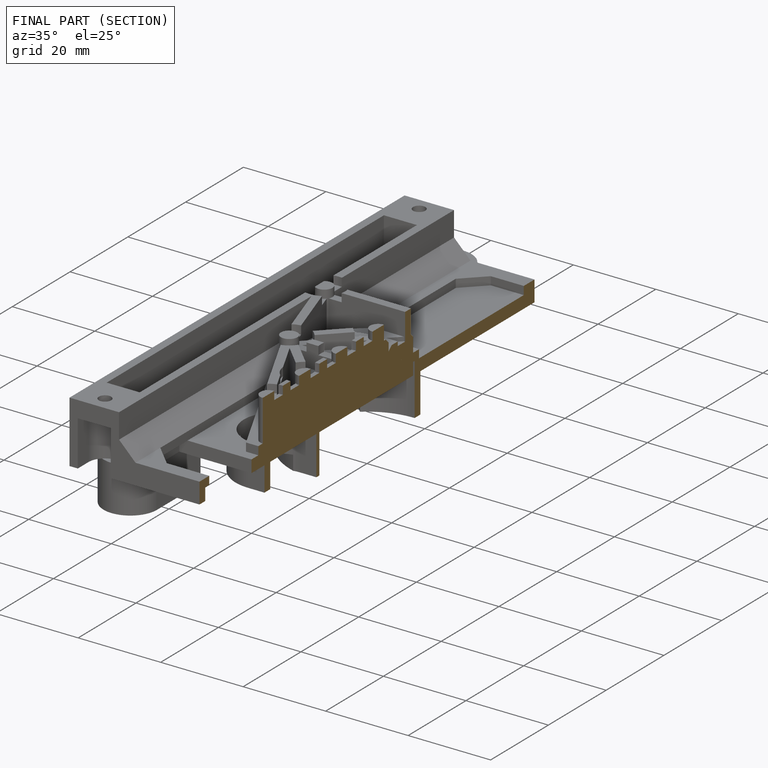
[diagram: finished part — half-section view (interior)]
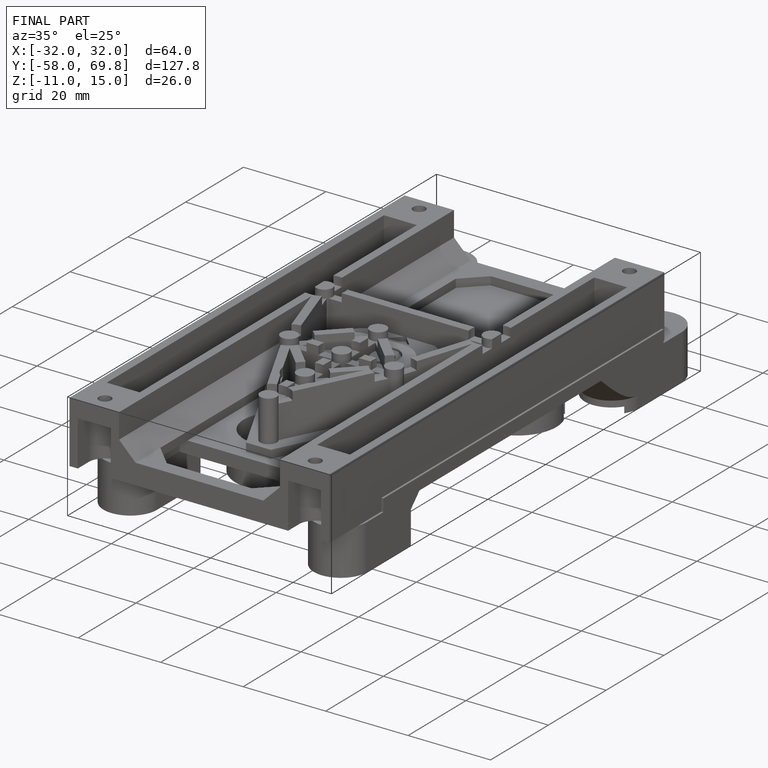
[diagram: finished part — iso view with bounding-box wireframe]
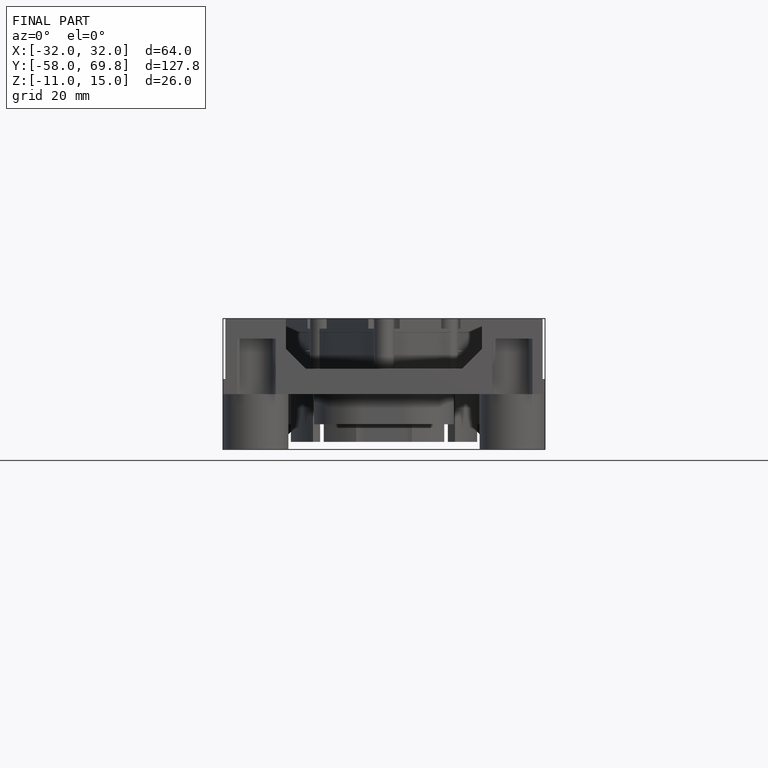
[diagram: finished part — front view with bounding-box wireframe]
